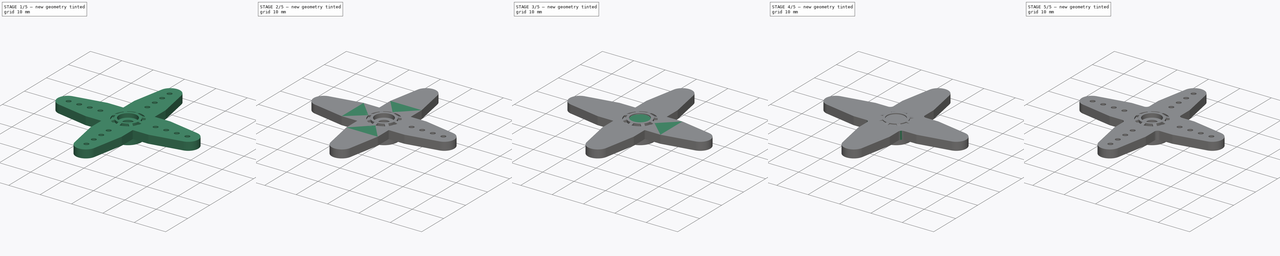
[diagram: build sequence overview — one tinted view per stage of 5, left to right]
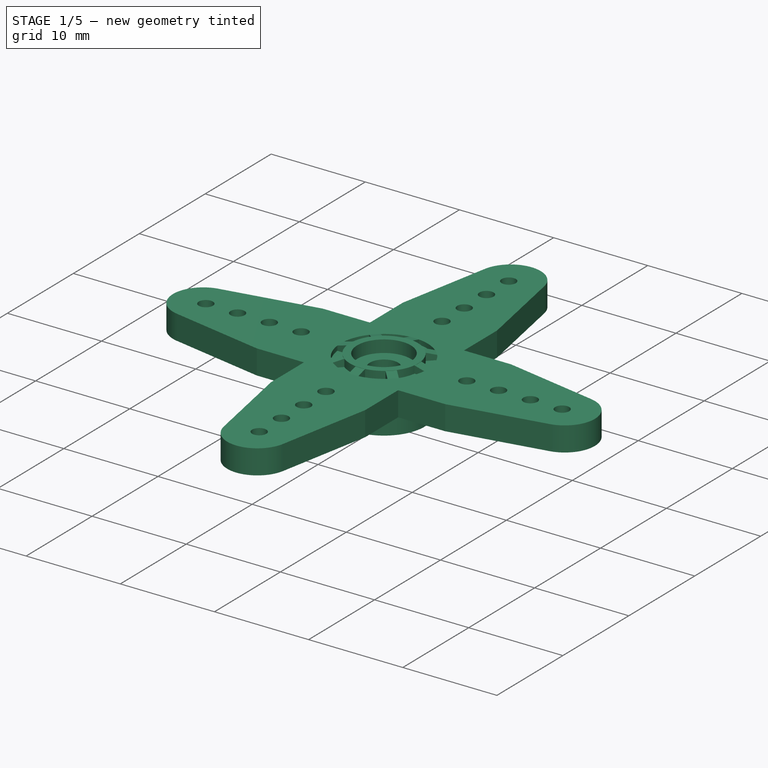
[diagram: stage 1 of 5 — iso view after this stage's code; geometry added in this stage tinted green]
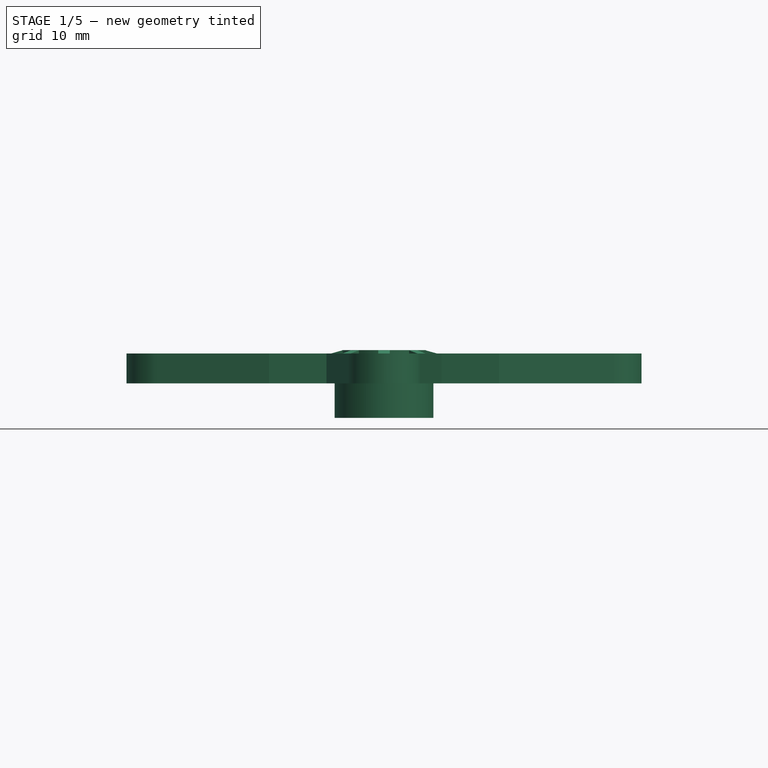
[diagram: stage 1 of 5 — front view after this stage's code; geometry added in this stage tinted green]
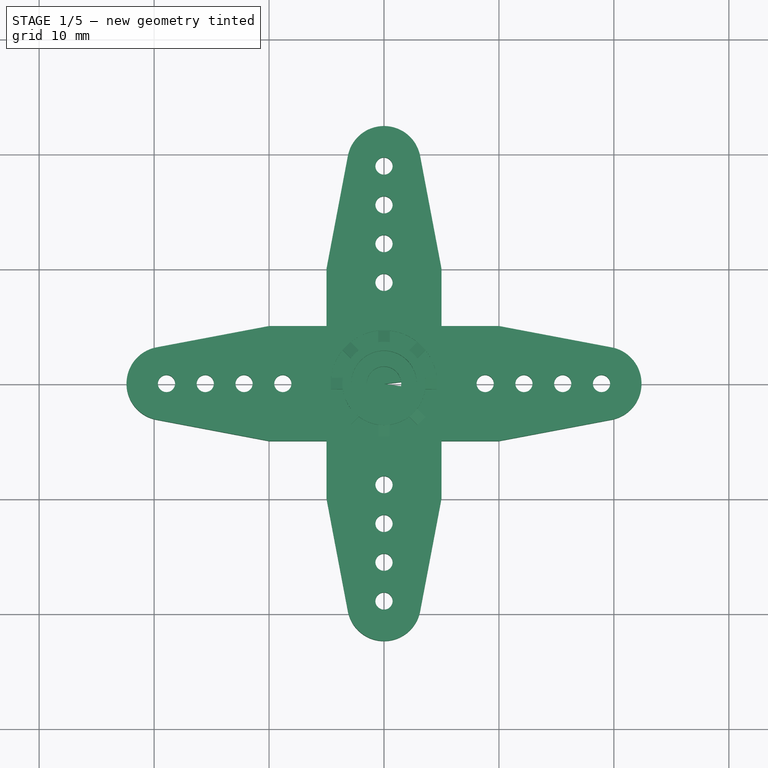
[diagram: stage 1 of 5 — top view after this stage's code; geometry added in this stage tinted green]
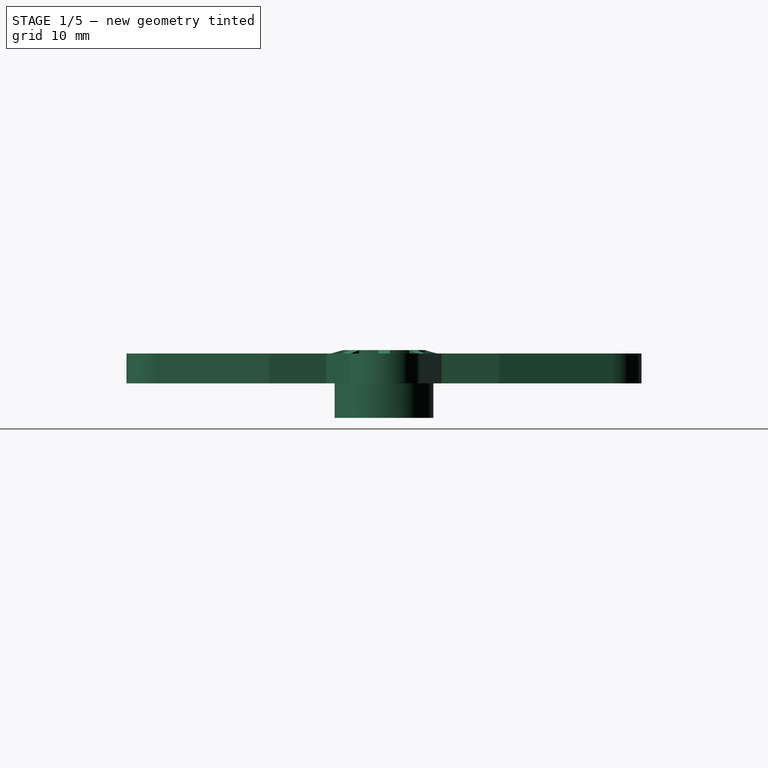
[diagram: stage 1 of 5 — right view after this stage's code; geometry added in this stage tinted green]
FCSTD DOCUMENT  (FreeCAD 0.21R33771 (Git))
Label: mg996_arms
License: All rights reserved
LicenseURL: http://en.wikipedia.org/wiki/All_rights_reserved
objects: Sketcher::SketchObject×40, PartDesign::Pocket×23, PartDesign::Pad×16, PartDesign::PolarPattern×12, PartDesign::Body×6, PartDesign::Fillet×3, Image::ImagePlane×1, App::MeasureDistance×1
note: 142 computed .brp shape members not serialized (recipe doc carries the construction recipe); baked Part::Feature solids carry a one-line shape summary decoded from their .brp

FEATURE [Sketcher::SketchObject] Sketch029
  FullyConstrained = true
  MapMode = 5
  Support = -> [XY_Plane003]
  sketch-geometry (20):
    g0: ArcOfCircle CenterX=0 CenterY=19.2 CenterZ=0 NormalX=0 NormalY=0 NormalZ=1 AngleXU=0 Radius=3.2 StartAngle=0.187245 EndAngle=2.95435
    g1: LineSegment StartX=-3.14407 StartY=19.7957 StartZ=0 EndX=-5 EndY=10 EndZ=0
    g2: LineSegment StartX=-5 StartY=10 StartZ=0 EndX=-5 EndY=5 EndZ=0
    g3: LineSegment StartX=3.14407 StartY=19.7957 StartZ=0 EndX=5 EndY=10 EndZ=0
    g4: LineSegment StartX=5 StartY=10 StartZ=0 EndX=5 EndY=5 EndZ=0
    g5: ArcOfCircle CenterX=0 CenterY=-19.2 CenterZ=0 NormalX=0 NormalY=0 NormalZ=1 AngleXU=0 Radius=3.2 StartAngle=3.32884 EndAngle=6.09594
    g6: LineSegment StartX=-3.14407 StartY=-19.7957 StartZ=0 EndX=-5 EndY=-10 EndZ=0
    g7: LineSegment StartX=-5 StartY=-10 StartZ=0 EndX=-5 EndY=-5 EndZ=0
    g8: LineSegment StartX=3.14407 StartY=-19.7957 StartZ=0 EndX=5 EndY=-10 EndZ=0
    g9: LineSegment StartX=5 StartY=-10 StartZ=0 EndX=5 EndY=-5 EndZ=0
    g10: LineSegment StartX=5 StartY=5 StartZ=0 EndX=10 EndY=5 EndZ=0
    g11: LineSegment StartX=10 StartY=5 StartZ=0 EndX=19.7957 EndY=3.14407 EndZ=0
    g12: ArcOfCircle CenterX=19.2 CenterY=0 CenterZ=0 NormalX=0 NormalY=0 NormalZ=1 AngleXU=0 Radius=3.2 StartAngle=4.89963 EndAngle=7.66674
    g13: LineSegment StartX=5 StartY=-5 StartZ=0 EndX=10 EndY=-5 EndZ=0
    g14: LineSegment StartX=10 StartY=-5 StartZ=0 EndX=19.7957 EndY=-3.14407 EndZ=0
    g15: LineSegment StartX=-5 StartY=5 StartZ=0 EndX=-10 EndY=5 EndZ=0
    g16: LineSegment StartX=-10 StartY=5 StartZ=0 EndX=-19.7957 EndY=3.14407 EndZ=0
    g17: ArcOfCircle CenterX=-19.2 CenterY=0 CenterZ=0 NormalX=0 NormalY=0 NormalZ=1 AngleXU=0 Radius=3.2 StartAngle=1.75804 EndAngle=4.52514
    g18: LineSegment StartX=-10 StartY=-5 StartZ=0 EndX=-19.7957 EndY=-3.14407 EndZ=0
    g19: LineSegment StartX=-5 StartY=-5 StartZ=0 EndX=-10 EndY=-5 EndZ=0
  constraints (53):
    c: PointOnObject(g0,g-2)
    c: Coincident(g2,g1)
    c: Vertical(g2)
    c: Coincident(g4,g3)
    c: Vertical(g4)
    c: Coincident(g7,g6)
    c: Vertical(g7)
    c: Coincident(g9,g8)
    c: Vertical(g9)
    c: Coincident(g10,g4)
    c: Horizontal(g10)
    c: Coincident(g11,g10)
    c: Coincident(g12,g11)
    c: Horizontal(g13)
    c: Coincident(g14,g13)
    c: Horizontal(g15)
    c: Coincident(g16,g15)
    c: Horizontal(g19)
    c: Coincident(g18,g19)
    c: Equal(g0,g17)
    c: Equal(g17,g5)
    c: Equal(g5,g12)
    c: Radius(g17) = 3.2
    c: Tangent(g17,g18) = 1.5708
    c: Tangent(g16,g17) = -1.5708
    c: Symmetric(g16,g17,g-1)
    c: DistanceX(g2,g-1) = 5
    c: DistanceY(g-1,g2) = 5
    c: Coincident(g2,g15)
    c: Coincident(g7,g19)
    c: Coincident(g9,g13)
    c: Symmetric(g2,g9,g-1)
    c: Horizontal(g2,g4)
    c: Horizontal(g7,g9)
    c: DistanceX(g15,g15) = 5
    c: Equal(g15,g19)
    c: Equal(g19,g13)
    c: Equal(g13,g10)
    c: Equal(g10,g4)
    c: Equal(g4,g2)
    c: Equal(g2,g7)
    c: Equal(g7,g9)
    c: Vertical(g4,g9)
    c: Symmetric(g17,g12,g-1)
    c: Symmetric(g0,g5,g-1)
    c: DistanceX(g17,g-1) = 19.2
    c: DistanceY(g-1,g0) = 19.2
    c: Tangent(g0,g1) = -1.5708
    c: Tangent(g3,g0) = 1.5708
    c: Tangent(g5,g6) = 1.5708
    c: Tangent(g5,g8) = -1.5708
    c: Tangent(g12,g14) = -1.5708
    c: Tangent(g11,g12,g11) = 1.5708
FEATURE [PartDesign::Pad] Pad012
  Direction = (0,0,1)
  Length = 2.6
  Length2 = 10
  Profile = -> Sketch029
  ReferenceAxis = -> Sketch029 [N_Axis]
  Type = 0
FEATURE [Sketcher::SketchObject] Sketch030
  FullyConstrained = true
  MapMode = 5
  Support = -> [XY_Plane003]
  sketch-geometry (2):
    g0: Circle CenterX=0 CenterY=0 CenterZ=0 NormalX=0 NormalY=0 NormalZ=1 AngleXU=0 Radius=3.625
    g1: Circle CenterX=0 CenterY=0 CenterZ=0 NormalX=0 NormalY=0 NormalZ=1 AngleXU=0 Radius=2.85
  constraints (4):
    c: Coincident(g0,g-1)
    c: Coincident(g1,g0)
    c: Diameter(g0) = 7.25
    c: Diameter(g1) = 5.7
FEATURE [PartDesign::Pad] Pad013
  BaseFeature = -> Pad012
  Direction = (0,0,1)
  Length = 2.9
  Length2 = 10
  Profile = -> Sketch030
  ReferenceAxis = -> Sketch030 [N_Axis]
  Type = 0
FEATURE [Sketcher::SketchObject] Sketch031
  ExternalGeometry = -> [Pad013]
  FullyConstrained = false
  MapMode = 5
  Placement = pos=(0,0,2.6) rot=(0,0,1;0rad)
  Support = -> [Pad013]
  sketch-geometry (2):
    g0: Circle CenterX=0 CenterY=0 CenterZ=0 NormalX=0 NormalY=0 NormalZ=1 AngleXU=0 Radius=3.625
    g1: Circle CenterX=0 CenterY=0 CenterZ=0 NormalX=0 NormalY=0 NormalZ=1 AngleXU=0 Radius=4.625
  constraints (3):
    c: Coincident(g0,g-3)
    c: Coincident(g1,g0)
    c: Diameter(g1) = 9.25
FEATURE [PartDesign::Pocket] Pocket017
  BaseFeature = -> Pad013
  Direction = (0,0,-1)
  Length = 0.5
  Length2 = 5
  Profile = -> Sketch031
  ReferenceAxis = -> Sketch031 [N_Axis]
  Type = 0
FEATURE [Sketcher::SketchObject] Sketch032
  ExternalGeometry = -> [Pocket017]
  FullyConstrained = false
  MapMode = 5
  Placement = pos=(0,0,0) rot=(1,0,0;1.5708rad)
  Support = -> [XZ_Plane003]
  sketch-geometry (4):
    g0: LineSegment StartX=3.53766 StartY=2.9 StartZ=0 EndX=4.625 EndY=2.6 EndZ=0
    g1: LineSegment StartX=4.625 StartY=2.6 StartZ=0 EndX=4.625 EndY=2.1 EndZ=0
    g2: LineSegment StartX=4.625 StartY=2.1 StartZ=0 EndX=3.53766 EndY=2.1 EndZ=0
    g3: LineSegment StartX=3.53766 StartY=2.1 StartZ=0 EndX=3.53766 EndY=2.9 EndZ=0
  constraints (9):
    c: PointOnObject(g0,g-3)
    c: Coincident(g0,g-5)
    c: Coincident(g0,g1)
    c: Coincident(g1,g-5)
    c: Coincident(g1,g2)
    c: PointOnObject(g2,g-4)
    c: Coincident(g2,g3)
    c: Coincident(g3,g0)
    c: Vertical(g3)
FEATURE [PartDesign::Pad] Pad014
  BaseFeature = -> Pocket017
  Direction = (0,-1,2e-16)
  Length = 1
  Length2 = 10
  Midplane = true
  Profile = -> Sketch032
  ReferenceAxis = -> Sketch032 [N_Axis]
  Type = 0
FEATURE [PartDesign::PolarPattern] PolarPattern009
  Angle = 360
  Axis = -> Z_Axis003
  BaseFeature = -> Pad014
  Occurrences = 8
  Originals = -> [Pad014]
FEATURE [Sketcher::SketchObject] Sketch033
  ExternalGeometry = -> [PolarPattern009]
  FullyConstrained = true
  MapMode = 5
  Placement = pos=(0,0,2.9) rot=(0,0,1;0rad)
  Support = -> [PolarPattern009]
  sketch-geometry (1):
    g0: Circle CenterX=0 CenterY=0 CenterZ=0 NormalX=0 NormalY=0 NormalZ=1 AngleXU=0 Radius=2.85
  constraints (2):
    c: Coincident(g0,g-3)
    c: Tangent(g0,g-3)
FEATURE [PartDesign::Pocket] Pocket018
  BaseFeature = -> PolarPattern009
  Direction = (0,0,-1)
  Length = 1.3
  Length2 = 5
  Profile = -> Sketch033
  ReferenceAxis = -> Sketch033 [N_Axis]
  Refine = true
  Type = 0
FEATURE [Sketcher::SketchObject] Sketch034
  FullyConstrained = true
  MapMode = 5
  Placement = pos=(0,0,1.6) rot=(0,0,1;0rad)
  Support = -> [Pocket018]
  sketch-geometry (1):
    g0: Circle CenterX=0 CenterY=0 CenterZ=0 NormalX=0 NormalY=0 NormalZ=1 AngleXU=0 Radius=1.5
  constraints (2):
    c: Coincident(g0,g-1)
    c: Diameter(g0) = 3
FEATURE [PartDesign::Pocket] Pocket019
  BaseFeature = -> Pocket018
  Direction = (0,0,-1)
  Length = 5
  Length2 = 5
  Profile = -> Sketch034
  ReferenceAxis = -> Sketch034 [N_Axis]
  Type = 0
FEATURE [Sketcher::SketchObject] Sketch035
  FullyConstrained = true
  MapMode = 5
  Support = -> [XY_Plane003]
  sketch-geometry (7):
    g0: Circle CenterX=8.8 CenterY=0 CenterZ=0 NormalX=0 NormalY=0 NormalZ=1 AngleXU=0 Radius=0.75
    g1: Circle CenterX=12.1741 CenterY=0 CenterZ=0 NormalX=0 NormalY=0 NormalZ=1 AngleXU=0 Radius=0.75
    g2: LineSegment StartX=8.8 StartY=0 StartZ=0 EndX=12.1741 EndY=0 EndZ=0
    g3: Circle CenterX=15.5482 CenterY=0 CenterZ=0 NormalX=0 NormalY=0 NormalZ=1 AngleXU=0 Radius=0.75
    g4: LineSegment StartX=12.1741 StartY=0 StartZ=0 EndX=15.5482 EndY=0 EndZ=0
    g5: Circle CenterX=18.9223 CenterY=0 CenterZ=0 NormalX=0 NormalY=0 NormalZ=1 AngleXU=0 Radius=0.75
    g6: LineSegment StartX=15.5482 StartY=0 StartZ=0 EndX=18.9223 EndY=0 EndZ=0
  constraints (18):
    c: PointOnObject(g0,g-1)
    c: Coincident(g0,g2)
    c: Coincident(g1,g2)
    c: Distance(g2) = 3.37411
    c: Angle(g2) = 0
    c: Coincident(g1,g4)
    c: Coincident(g3,g4)
    c: Equal(g2,g4)
    c: Parallel(g4,g2)
    c: Coincident(g3,g6)
    c: Coincident(g5,g6)
    c: Equal(g2,g6)
    c: Parallel(g6,g2)
    c: DistanceX(g-1,g0) = 8.8
    c: Diameter(g0) = 1.5
    c: Equal(g0,g1)
    c: Equal(g1,g3)
    c: Equal(g3,g5)
FEATURE [PartDesign::Pocket] Pocket020
  BaseFeature = -> Pocket019
  Direction = (0,0,-1)
  Length = 5
  Length2 = 5
  Profile = -> Sketch035
  ReferenceAxis = -> Sketch035 [N_Axis]
  Reversed = true
  Type = 0
FEATURE [PartDesign::PolarPattern] PolarPattern010
  Angle = 360
  Axis = -> Z_Axis002
  BaseFeature = -> Pocket020
  Occurrences = 4
  Originals = -> [Pocket020]
FEATURE [Sketcher::SketchObject] Sketch036
  FullyConstrained = true
  MapMode = 5
  Support = -> [XY_Plane003]
  sketch-geometry (1):
    g0: Circle CenterX=0 CenterY=0 CenterZ=0 NormalX=0 NormalY=0 NormalZ=1 AngleXU=0 Radius=4.3
  constraints (2):
    c: Coincident(g0,g-1)
    c: Diameter(g0) = 8.6
FEATURE [PartDesign::Pad] Pad015
  BaseFeature = -> PolarPattern010
  Direction = (0,0,1)
  Length = 3
  Length2 = 10
  Profile = -> Sketch036
  ReferenceAxis = -> Sketch036 [N_Axis]
  Reversed = true
  Type = 0
FEATURE [Sketcher::SketchObject] Sketch037
  FullyConstrained = false
  MapMode = 5
  Support = -> [XY_Plane003]
  sketch-geometry (9):
    g0: Circle CenterX=0 CenterY=0 CenterZ=0 NormalX=0 NormalY=0 NormalZ=1 AngleXU=0 Radius=3
    g1: LineSegment StartX=0 StartY=0 StartZ=0 EndX=2.97634 EndY=0.376 EndZ=0
    g2: LineSegment StartX=0 StartY=0 StartZ=0 EndX=2.97634 EndY=-0.376 EndZ=0
    g3: ArcOfCircle CenterX=0 CenterY=0 CenterZ=0 NormalX=0 NormalY=0 NormalZ=1 AngleXU=0 Radius=3 StartAngle=0.0573375 EndAngle=0.125664
    g4: ArcOfCircle CenterX=0 CenterY=0 CenterZ=0 NormalX=0 NormalY=0 NormalZ=1 AngleXU=0 Radius=3 StartAngle=6.15752 EndAngle=6.22585
    g5: LineSegment StartX=2.99507 StartY=0.171918 StartZ=0 EndX=2.70396 EndY=0 EndZ=0
    g6: LineSegment StartX=2.70396 StartY=0 StartZ=0 EndX=2.99507 EndY=-0.171918 EndZ=0
    g7: LineSegment StartX=0 StartY=0 StartZ=0 EndX=2.97634 EndY=0.376 EndZ=0
    g8: LineSegment StartX=0 StartY=0 StartZ=0 EndX=2.97634 EndY=-0.376 EndZ=0
  constraints (20):
    c: Coincident(g0,g-1)
    c: Diameter(g0) = 6
    c: Coincident(g1,g0)
    c: PointOnObject(g1,g0)
    c: Coincident(g2,g0)
    c: Angle(g-1,g1) = 0.125664
    c: Angle(g2,g-1) = 0.125664
    c: Coincident(g3,g0)
    c: Coincident(g3,g1)
    c: Coincident(g4,g3)
    c: Coincident(g4,g2)
    c: Symmetric(g3,g4,g-1)
    c: Coincident(g5,g3)
    c: PointOnObject(g5,g-1)
    c: Coincident(g6,g5)
    c: Coincident(g6,g4)
    c: Coincident(g7,g3)
    c: Coincident(g7,g3)
    c: Coincident(g8,g3)
    c: Coincident(g8,g4)
FEATURE [PartDesign::Pocket] Pocket021
  BaseFeature = -> Pad015
  Direction = (0,0,-1)
  Length = 5
  Length2 = 0.5
  Profile = -> Sketch037
  ReferenceAxis = -> Sketch037 [N_Axis]
  Type = 4
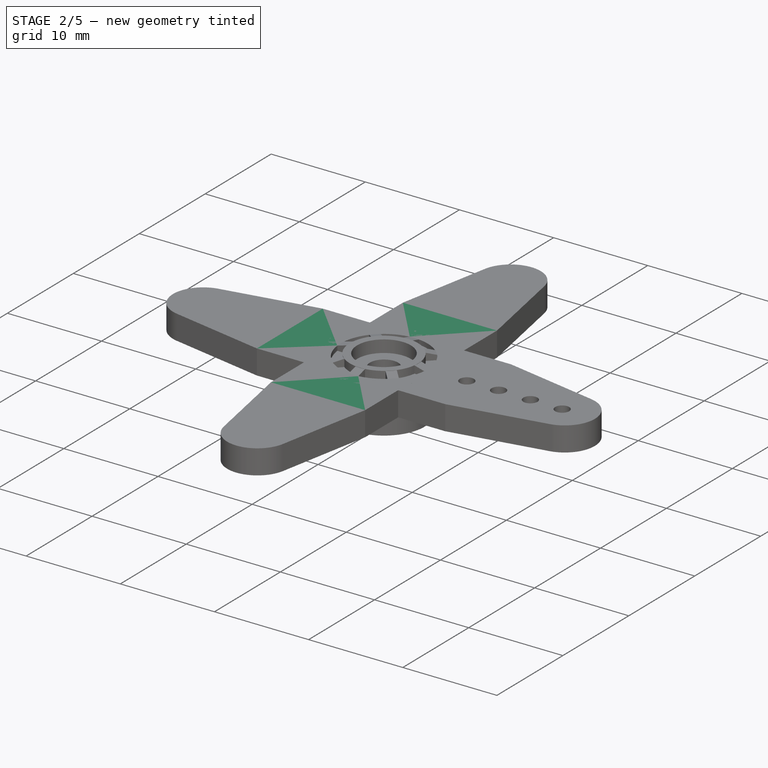
[diagram: stage 2 of 5 — iso view after this stage's code; geometry added in this stage tinted green]
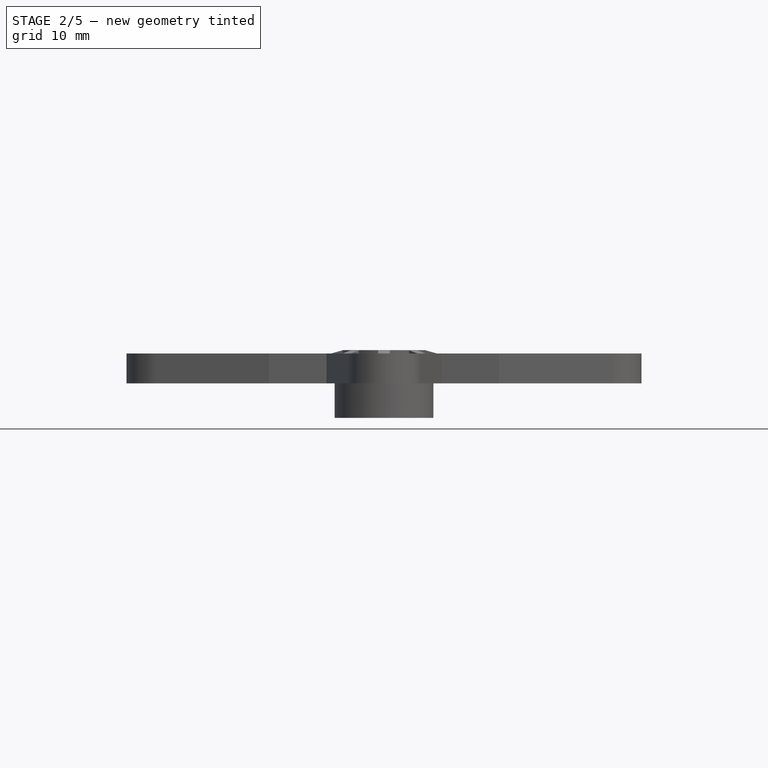
[diagram: stage 2 of 5 — front view after this stage's code; geometry added in this stage tinted green]
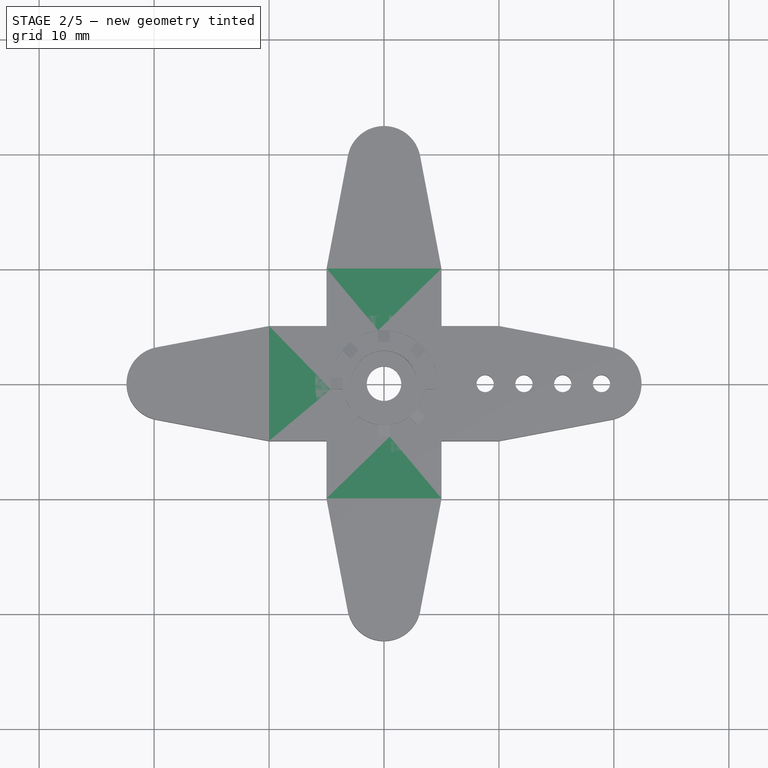
[diagram: stage 2 of 5 — top view after this stage's code; geometry added in this stage tinted green]
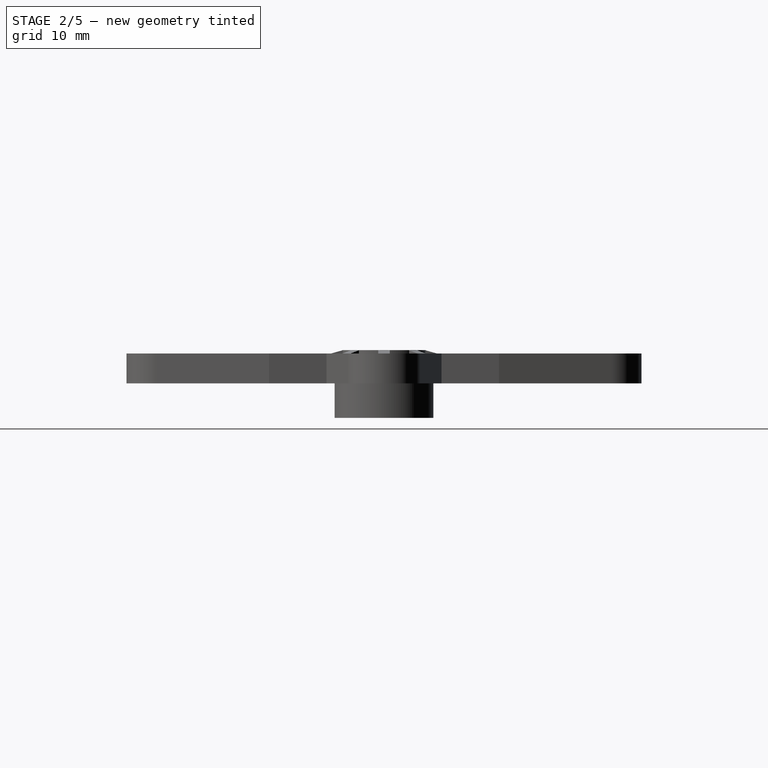
[diagram: stage 2 of 5 — right view after this stage's code; geometry added in this stage tinted green]
FEATURE [PartDesign::Body] Body001  label="Corps001"
  Group = -> [Sketch009,Pad004,Sketch010,Pad005,Sketch011,Pocket005,Sketch012,Pad006,PolarPattern003,Sketch013,Pocket006,Sketch014,Pocket007,Sketch015,Pocket008,PolarPattern004,Sketch016,Pad007,Sketch017,Pocket009,PolarPattern005,Fillet]
  Origin = -> Origin001
  Placement = pos=(50,0,0) rot=(0,0,1;0rad)
  Tip = -> Fillet
FEATURE [Sketcher::SketchObject] Sketch019
  FullyConstrained = true
  MapMode = 5
  Support = -> [XY_Plane002]
  sketch-geometry (20):
    g0: ArcOfCircle CenterX=0 CenterY=19.2 CenterZ=0 NormalX=0 NormalY=0 NormalZ=1 AngleXU=0 Radius=3.2 StartAngle=0.187245 EndAngle=2.95435
    g1: LineSegment StartX=-3.14407 StartY=19.7957 StartZ=0 EndX=-5 EndY=10 EndZ=0
    g2: LineSegment StartX=-5 StartY=10 StartZ=0 EndX=-5 EndY=5 EndZ=0
    g3: LineSegment StartX=3.14407 StartY=19.7957 StartZ=0 EndX=5 EndY=10 EndZ=0
    g4: LineSegment StartX=5 StartY=10 StartZ=0 EndX=5 EndY=5 EndZ=0
    g5: ArcOfCircle CenterX=0 CenterY=-19.2 CenterZ=0 NormalX=0 NormalY=0 NormalZ=1 AngleXU=0 Radius=3.2 StartAngle=3.32884 EndAngle=6.09594
    g6: LineSegment StartX=-3.14407 StartY=-19.7957 StartZ=0 EndX=-5 EndY=-10 EndZ=0
    g7: LineSegment StartX=-5 StartY=-10 StartZ=0 EndX=-5 EndY=-5 EndZ=0
    g8: LineSegment StartX=3.14407 StartY=-19.7957 StartZ=0 EndX=5 EndY=-10 EndZ=0
    g9: LineSegment StartX=5 StartY=-10 StartZ=0 EndX=5 EndY=-5 EndZ=0
    g10: LineSegment StartX=5 StartY=5 StartZ=0 EndX=10 EndY=5 EndZ=0
    g11: LineSegment StartX=10 StartY=5 StartZ=0 EndX=19.7957 EndY=3.14407 EndZ=0
    g12: ArcOfCircle CenterX=19.2 CenterY=0 CenterZ=0 NormalX=0 NormalY=0 NormalZ=1 AngleXU=0 Radius=3.2 StartAngle=4.89963 EndAngle=7.66674
    g13: LineSegment StartX=5 StartY=-5 StartZ=0 EndX=10 EndY=-5 EndZ=0
    g14: LineSegment StartX=10 StartY=-5 StartZ=0 EndX=19.7957 EndY=-3.14407 EndZ=0
    g15: LineSegment StartX=-5 StartY=5 StartZ=0 EndX=-10 EndY=5 EndZ=0
    g16: LineSegment StartX=-10 StartY=5 StartZ=0 EndX=-19.7957 EndY=3.14407 EndZ=0
    g17: ArcOfCircle CenterX=-19.2 CenterY=0 CenterZ=0 NormalX=0 NormalY=0 NormalZ=1 AngleXU=0 Radius=3.2 StartAngle=1.75804 EndAngle=4.52514
    g18: LineSegment StartX=-10 StartY=-5 StartZ=0 EndX=-19.7957 EndY=-3.14407 EndZ=0
    g19: LineSegment StartX=-5 StartY=-5 StartZ=0 EndX=-10 EndY=-5 EndZ=0
  constraints (53):
    c: PointOnObject(g0,g-2)
    c: Coincident(g2,g1)
    c: Vertical(g2)
    c: Coincident(g4,g3)
    c: Vertical(g4)
    c: Coincident(g7,g6)
    c: Vertical(g7)
    c: Coincident(g9,g8)
    c: Vertical(g9)
    c: Coincident(g10,g4)
    c: Horizontal(g10)
    c: Coincident(g11,g10)
    c: Coincident(g12,g11)
    c: Horizontal(g13)
    c: Coincident(g14,g13)
    c: Horizontal(g15)
    c: Coincident(g16,g15)
    c: Horizontal(g19)
    c: Coincident(g18,g19)
    c: Equal(g0,g17)
    c: Equal(g17,g5)
    c: Equal(g5,g12)
    c: Radius(g17) = 3.2
    c: Tangent(g17,g18) = 1.5708
    c: Tangent(g16,g17) = -1.5708
    c: Symmetric(g16,g17,g-1)
    c: DistanceX(g2,g-1) = 5
    c: DistanceY(g-1,g2) = 5
    c: Coincident(g2,g15)
    c: Coincident(g7,g19)
    c: Coincident(g9,g13)
    c: Symmetric(g2,g9,g-1)
    c: Horizontal(g2,g4)
    c: Horizontal(g7,g9)
    c: DistanceX(g15,g15) = 5
    c: Equal(g15,g19)
    c: Equal(g19,g13)
    c: Equal(g13,g10)
    c: Equal(g10,g4)
    c: Equal(g4,g2)
    c: Equal(g2,g7)
    c: Equal(g7,g9)
    c: Vertical(g4,g9)
    c: Symmetric(g17,g12,g-1)
    c: Symmetric(g0,g5,g-1)
    c: DistanceX(g17,g-1) = 19.2
    c: DistanceY(g-1,g0) = 19.2
    c: Tangent(g0,g1) = -1.5708
    c: Tangent(g3,g0) = 1.5708
    c: Tangent(g5,g6) = 1.5708
    c: Tangent(g5,g8) = -1.5708
    c: Tangent(g12,g14) = -1.5708
    c: Tangent(g11,g12,g11) = 1.5708
FEATURE [PartDesign::Pad] Pad008
  Direction = (0,0,1)
  Length = 2.6
  Length2 = 10
  Profile = -> Sketch019
  ReferenceAxis = -> Sketch019 [N_Axis]
  Type = 0
FEATURE [Sketcher::SketchObject] Sketch020
  FullyConstrained = true
  MapMode = 5
  Support = -> [XY_Plane002]
  sketch-geometry (2):
    g0: Circle CenterX=0 CenterY=0 CenterZ=0 NormalX=0 NormalY=0 NormalZ=1 AngleXU=0 Radius=3.625
    g1: Circle CenterX=0 CenterY=0 CenterZ=0 NormalX=0 NormalY=0 NormalZ=1 AngleXU=0 Radius=2.85
  constraints (4):
    c: Coincident(g0,g-1)
    c: Coincident(g1,g0)
    c: Diameter(g0) = 7.25
    c: Diameter(g1) = 5.7
FEATURE [PartDesign::Pad] Pad009
  BaseFeature = -> Pad008
  Direction = (0,0,1)
  Length = 2.9
  Length2 = 10
  Profile = -> Sketch020
  ReferenceAxis = -> Sketch020 [N_Axis]
  Type = 0
FEATURE [Sketcher::SketchObject] Sketch021
  ExternalGeometry = -> [Pad009]
  FullyConstrained = false
  MapMode = 5
  Placement = pos=(0,0,2.6) rot=(0,0,1;0rad)
  Support = -> [Pad009]
  sketch-geometry (2):
    g0: Circle CenterX=0 CenterY=0 CenterZ=0 NormalX=0 NormalY=0 NormalZ=1 AngleXU=0 Radius=3.625
    g1: Circle CenterX=0 CenterY=0 CenterZ=0 NormalX=0 NormalY=0 NormalZ=1 AngleXU=0 Radius=4.625
  constraints (3):
    c: Coincident(g0,g-3)
    c: Coincident(g1,g0)
    c: Diameter(g1) = 9.25
FEATURE [PartDesign::Pocket] Pocket011
  BaseFeature = -> Pad009
  Direction = (0,0,-1)
  Length = 0.5
  Length2 = 5
  Profile = -> Sketch021
  ReferenceAxis = -> Sketch021 [N_Axis]
  Type = 0
FEATURE [Sketcher::SketchObject] Sketch022
  ExternalGeometry = -> [Pocket011]
  FullyConstrained = false
  MapMode = 5
  Placement = pos=(0,0,0) rot=(1,0,0;1.5708rad)
  Support = -> [XZ_Plane002]
  sketch-geometry (4):
    g0: LineSegment StartX=3.53766 StartY=2.9 StartZ=0 EndX=4.625 EndY=2.6 EndZ=0
    g1: LineSegment StartX=4.625 StartY=2.6 StartZ=0 EndX=4.625 EndY=2.1 EndZ=0
    g2: LineSegment StartX=4.625 StartY=2.1 StartZ=0 EndX=3.53766 EndY=2.1 EndZ=0
    g3: LineSegment StartX=3.53766 StartY=2.1 StartZ=0 EndX=3.53766 EndY=2.9 EndZ=0
  constraints (9):
    c: PointOnObject(g0,g-3)
    c: Coincident(g0,g-5)
    c: Coincident(g0,g1)
    c: Coincident(g1,g-5)
    c: Coincident(g1,g2)
    c: PointOnObject(g2,g-4)
    c: Coincident(g2,g3)
    c: Coincident(g3,g0)
    c: Vertical(g3)
FEATURE [PartDesign::Pad] Pad010
  BaseFeature = -> Pocket011
  Direction = (0,-1,2e-16)
  Length = 1
  Length2 = 10
  Midplane = true
  Profile = -> Sketch022
  ReferenceAxis = -> Sketch022 [N_Axis]
  Type = 0
FEATURE [PartDesign::PolarPattern] PolarPattern006
  Angle = 360
  Axis = -> Z_Axis002
  BaseFeature = -> Pad010
  Occurrences = 8
  Originals = -> [Pad010]
FEATURE [Sketcher::SketchObject] Sketch023
  ExternalGeometry = -> [PolarPattern006]
  FullyConstrained = true
  MapMode = 5
  Placement = pos=(0,0,2.9) rot=(0,0,1;0rad)
  Support = -> [PolarPattern006]
  sketch-geometry (1):
    g0: Circle CenterX=0 CenterY=0 CenterZ=0 NormalX=0 NormalY=0 NormalZ=1 AngleXU=0 Radius=2.85
  constraints (2):
    c: Coincident(g0,g-3)
    c: Tangent(g0,g-3)
FEATURE [PartDesign::Pocket] Pocket012
  BaseFeature = -> PolarPattern006
  Direction = (0,0,-1)
  Length = 1.3
  Length2 = 5
  Profile = -> Sketch023
  ReferenceAxis = -> Sketch023 [N_Axis]
  Refine = true
  Type = 0
FEATURE [Sketcher::SketchObject] Sketch024
  FullyConstrained = true
  MapMode = 5
  Placement = pos=(0,0,1.6) rot=(0,0,1;0rad)
  Support = -> [Pocket012]
  sketch-geometry (1):
    g0: Circle CenterX=0 CenterY=0 CenterZ=0 NormalX=0 NormalY=0 NormalZ=1 AngleXU=0 Radius=1.5
  constraints (2):
    c: Coincident(g0,g-1)
    c: Diameter(g0) = 3
FEATURE [PartDesign::Pocket] Pocket013
  BaseFeature = -> Pocket012
  Direction = (0,0,-1)
  Length = 5
  Length2 = 5
  Profile = -> Sketch024
  ReferenceAxis = -> Sketch024 [N_Axis]
  Type = 0
FEATURE [Sketcher::SketchObject] Sketch025
  FullyConstrained = true
  MapMode = 5
  Support = -> [XY_Plane002]
  sketch-geometry (7):
    g0: Circle CenterX=8.8 CenterY=0 CenterZ=0 NormalX=0 NormalY=0 NormalZ=1 AngleXU=0 Radius=0.75
    g1: Circle CenterX=12.1741 CenterY=0 CenterZ=0 NormalX=0 NormalY=0 NormalZ=1 AngleXU=0 Radius=0.75
    g2: LineSegment StartX=8.8 StartY=0 StartZ=0 EndX=12.1741 EndY=0 EndZ=0
    g3: Circle CenterX=15.5482 CenterY=0 CenterZ=0 NormalX=0 NormalY=0 NormalZ=1 AngleXU=0 Radius=0.75
    g4: LineSegment StartX=12.1741 StartY=0 StartZ=0 EndX=15.5482 EndY=0 EndZ=0
    g5: Circle CenterX=18.9223 CenterY=0 CenterZ=0 NormalX=0 NormalY=0 NormalZ=1 AngleXU=0 Radius=0.75
    g6: LineSegment StartX=15.5482 StartY=0 StartZ=0 EndX=18.9223 EndY=0 EndZ=0
  constraints (18):
    c: PointOnObject(g0,g-1)
    c: Coincident(g0,g2)
    c: Coincident(g1,g2)
    c: Distance(g2) = 3.37411
    c: Angle(g2) = 0
    c: Coincident(g1,g4)
    c: Coincident(g3,g4)
    c: Equal(g2,g4)
    c: Parallel(g4,g2)
    c: Coincident(g3,g6)
    c: Coincident(g5,g6)
    c: Equal(g2,g6)
    c: Parallel(g6,g2)
    c: DistanceX(g-1,g0) = 8.8
    c: Diameter(g0) = 1.5
    c: Equal(g0,g1)
    c: Equal(g1,g3)
    c: Equal(g3,g5)
FEATURE [PartDesign::Pocket] Pocket014
  BaseFeature = -> Pocket013
  Direction = (0,0,-1)
  Length = 5
  Length2 = 5
  Profile = -> Sketch025
  ReferenceAxis = -> Sketch025 [N_Axis]
  Reversed = true
  Type = 0
FEATURE [PartDesign::PolarPattern] PolarPattern011
  Angle = 360
  Axis = -> Sketch037 [N_Axis]
  BaseFeature = -> Pocket021
  Occurrences = 25
  Originals = -> [Pocket021]
  Refine = true
FEATURE [PartDesign::Fillet] Fillet002
  Base = -> PolarPattern011 [Edge125,Edge115,Edge1,Edge116]
  BaseFeature = -> PolarPattern011
  Radius = 1
  SupportTransform = false
  UseAllEdges = false
FEATURE [Sketcher::SketchObject] Sketch038
  FullyConstrained = true
  MapMode = 5
  Support = -> [XY_Plane003]
  sketch-geometry (2):
    g0: Circle CenterX=0 CenterY=0 CenterZ=0 NormalX=0 NormalY=0 NormalZ=1 AngleXU=0 Radius=6
    g1: Circle CenterX=0 CenterY=0 CenterZ=0 NormalX=0 NormalY=0 NormalZ=1 AngleXU=0 Radius=25
  constraints (4):
    c: Coincident(g0,g-1)
    c: Diameter(g0) = 12
    c: Coincident(g1,g0)
    c: Diameter(g1) = 50
FEATURE [PartDesign::Pocket] Pocket022
  BaseFeature = -> Fillet002
  Direction = (0,0,-1)
  Length = 10
  Length2 = 5
  Midplane = true
  Profile = -> Sketch038
  ReferenceAxis = -> Sketch038 [N_Axis]
  Type = 0
FEATURE [PartDesign::Body] Body003  label="Corps003"
  Group = -> [Sketch029,Pad012,Sketch030,Pad013,Sketch031,Pocket017,Sketch032,Pad014,PolarPattern009,Sketch033,Pocket018,Sketch034,Pocket019,Sketch035,Pocket020,PolarPattern010,Sketch036,Pad015,Sketch037,Pocket021,PolarPattern011,Fillet002,Sketch038,Pocket022]
  Origin = -> Origin003
  Tip = -> Pocket022
FEATURE [Sketcher::SketchObject] Sketch039
  FullyConstrained = false
  MapMode = 5
  Support = -> [XY_Plane002]
  sketch-geometry (3):
    g0: LineSegment StartX=0 StartY=0 StartZ=0 EndX=13.1322 EndY=8.09012 EndZ=0
    g1: ArcOfCircle CenterX=13.4863 CenterY=0 CenterZ=0 NormalX=0 NormalY=0 NormalZ=1 AngleXU=0 Radius=2.51374 StartAngle=5.23209 EndAngle=7.15766
    g2: GeomPoint X=16 Y=0 Z=0
  constraints (5):
    c: Coincident(g0,g-1)
    c: PointOnObject(g1,g-1)
    c: PointOnObject(g2,g-1)
    c: PointOnObject(g2,g1)
    c: DistanceX(g0,g2) = 16
FEATURE [PartDesign::Body] Body002  label="Corps002"
  Group = -> [Sketch019,Pad008,Sketch020,Pad009,Sketch021,Pocket011,Sketch022,Pad010,PolarPattern006,Sketch023,Pocket012,Sketch024,Pocket013,Sketch025,Pocket014,PolarPattern007,Sketch026,Pad011,Sketch027,Pocket015,PolarPattern008,Fillet001,Sketch028,Pocket016,Sketch039]
  Origin = -> Origin002
  Tip = -> Pocket016
FEATURE [App::MeasureDistance] Distance  label="Distance: 44,8000 mm"
  Distance = 44.8
  P1 = (50,22.4,2.6)
  P2 = (50,-22.4,2.6)
FEATURE [PartDesign::Body] Body004  label="Corps004"
  Origin = -> Origin004
FEATURE [PartDesign::Body] Body005  label="Corps005"
  Origin = -> Origin005
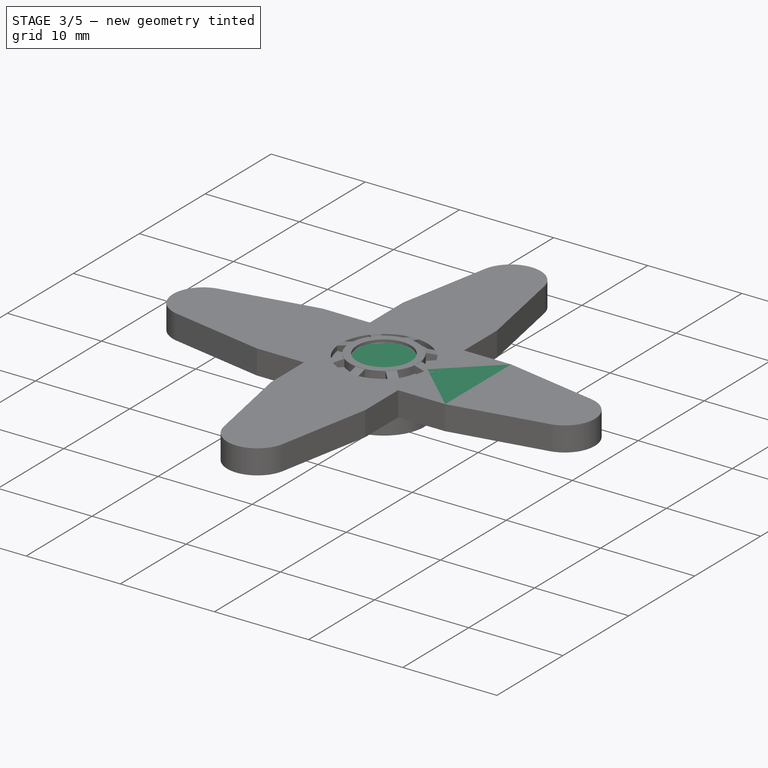
[diagram: stage 3 of 5 — iso view after this stage's code; geometry added in this stage tinted green]
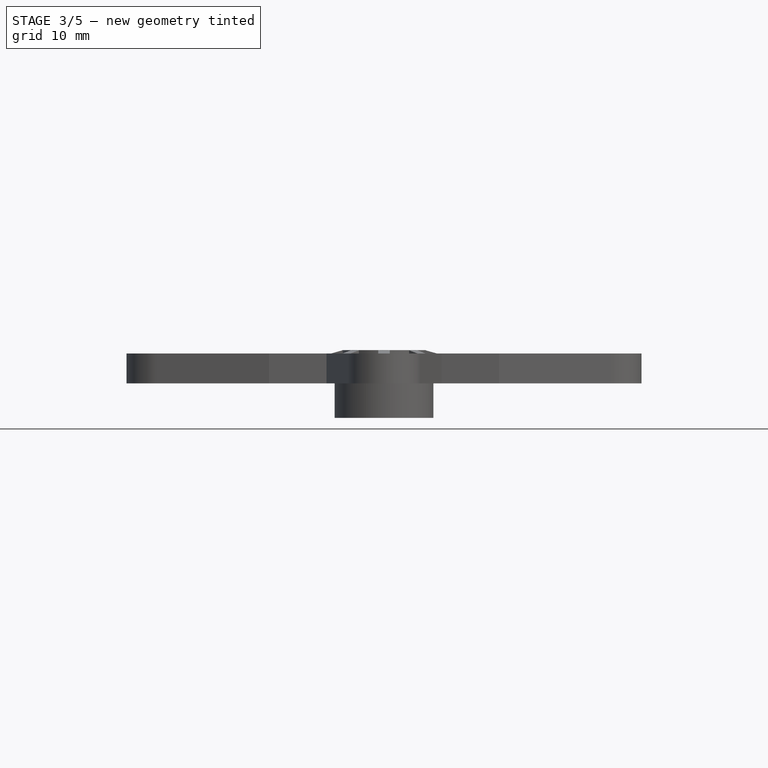
[diagram: stage 3 of 5 — front view after this stage's code; geometry added in this stage tinted green]
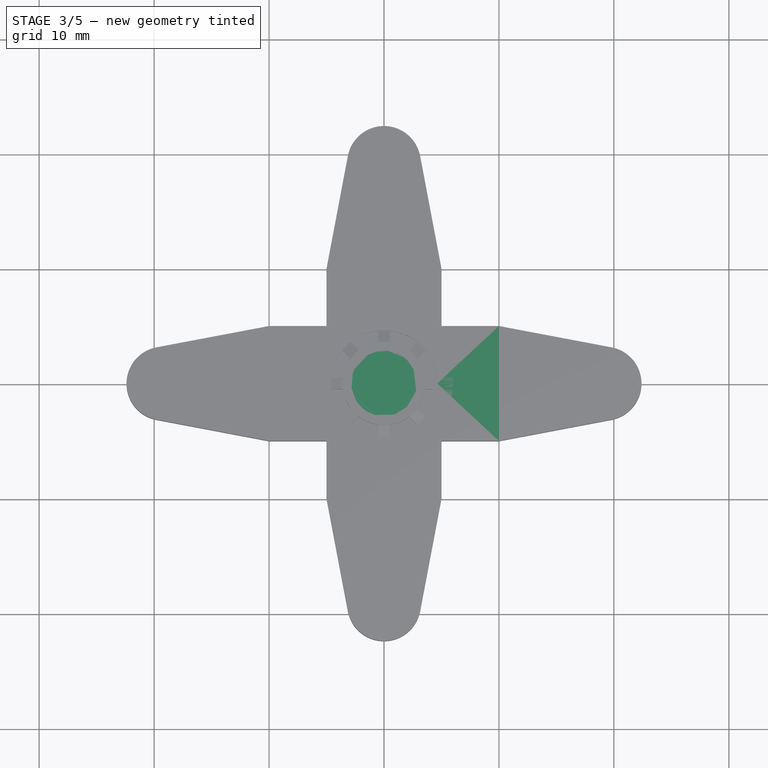
[diagram: stage 3 of 5 — top view after this stage's code; geometry added in this stage tinted green]
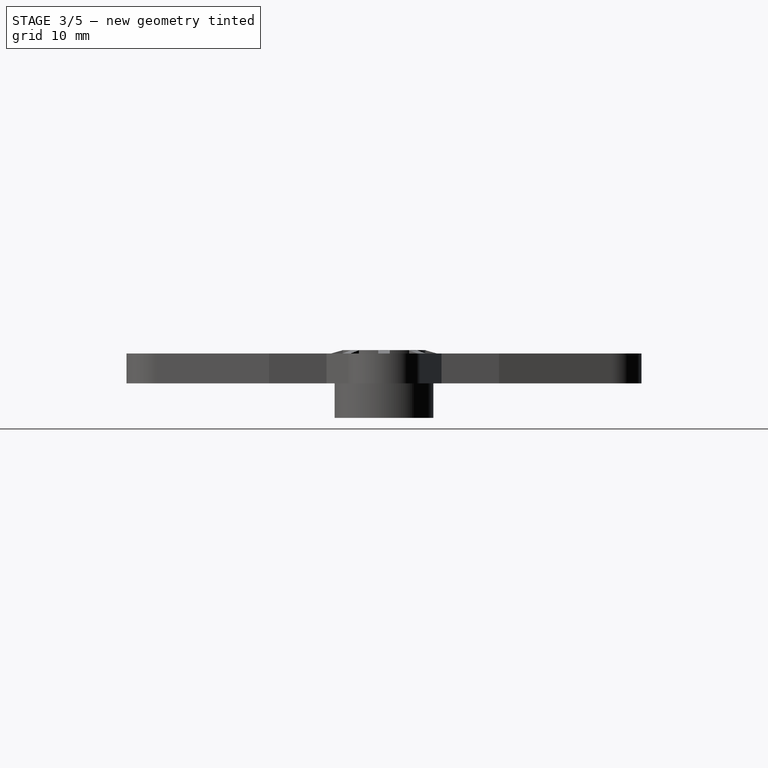
[diagram: stage 3 of 5 — right view after this stage's code; geometry added in this stage tinted green]
FEATURE [Sketcher::SketchObject] Sketch009
  FullyConstrained = true
  MapMode = 5
  Support = -> [XY_Plane001]
  sketch-geometry (20):
    g0: ArcOfCircle CenterX=0 CenterY=19.2 CenterZ=0 NormalX=0 NormalY=0 NormalZ=1 AngleXU=0 Radius=3.2 StartAngle=0.187245 EndAngle=2.95435
    g1: LineSegment StartX=-3.14407 StartY=19.7957 StartZ=0 EndX=-5 EndY=10 EndZ=0
    g2: LineSegment StartX=-5 StartY=10 StartZ=0 EndX=-5 EndY=5 EndZ=0
    g3: LineSegment StartX=3.14407 StartY=19.7957 StartZ=0 EndX=5 EndY=10 EndZ=0
    g4: LineSegment StartX=5 StartY=10 StartZ=0 EndX=5 EndY=5 EndZ=0
    g5: ArcOfCircle CenterX=0 CenterY=-19.2 CenterZ=0 NormalX=0 NormalY=0 NormalZ=1 AngleXU=0 Radius=3.2 StartAngle=3.32884 EndAngle=6.09594
    g6: LineSegment StartX=-3.14407 StartY=-19.7957 StartZ=0 EndX=-5 EndY=-10 EndZ=0
    g7: LineSegment StartX=-5 StartY=-10 StartZ=0 EndX=-5 EndY=-5 EndZ=0
    g8: LineSegment StartX=3.14407 StartY=-19.7957 StartZ=0 EndX=5 EndY=-10 EndZ=0
    g9: LineSegment StartX=5 StartY=-10 StartZ=0 EndX=5 EndY=-5 EndZ=0
    g10: LineSegment StartX=5 StartY=5 StartZ=0 EndX=10 EndY=5 EndZ=0
    g11: LineSegment StartX=10 StartY=5 StartZ=0 EndX=19.7957 EndY=3.14407 EndZ=0
    g12: ArcOfCircle CenterX=19.2 CenterY=0 CenterZ=0 NormalX=0 NormalY=0 NormalZ=1 AngleXU=0 Radius=3.2 StartAngle=4.89963 EndAngle=7.66674
    g13: LineSegment StartX=5 StartY=-5 StartZ=0 EndX=10 EndY=-5 EndZ=0
    g14: LineSegment StartX=10 StartY=-5 StartZ=0 EndX=19.7957 EndY=-3.14407 EndZ=0
    g15: LineSegment StartX=-5 StartY=5 StartZ=0 EndX=-10 EndY=5 EndZ=0
    g16: LineSegment StartX=-10 StartY=5 StartZ=0 EndX=-19.7957 EndY=3.14407 EndZ=0
    g17: ArcOfCircle CenterX=-19.2 CenterY=0 CenterZ=0 NormalX=0 NormalY=0 NormalZ=1 AngleXU=0 Radius=3.2 StartAngle=1.75804 EndAngle=4.52514
    g18: LineSegment StartX=-10 StartY=-5 StartZ=0 EndX=-19.7957 EndY=-3.14407 EndZ=0
    g19: LineSegment StartX=-5 StartY=-5 StartZ=0 EndX=-10 EndY=-5 EndZ=0
  constraints (53):
    c: PointOnObject(g0,g-2)
    c: Coincident(g2,g1)
    c: Vertical(g2)
    c: Coincident(g4,g3)
    c: Vertical(g4)
    c: Coincident(g7,g6)
    c: Vertical(g7)
    c: Coincident(g9,g8)
    c: Vertical(g9)
    c: Coincident(g10,g4)
    c: Horizontal(g10)
    c: Coincident(g11,g10)
    c: Coincident(g12,g11)
    c: Horizontal(g13)
    c: Coincident(g14,g13)
    c: Horizontal(g15)
    c: Coincident(g16,g15)
    c: Horizontal(g19)
    c: Coincident(g18,g19)
    c: Equal(g0,g17)
    c: Equal(g17,g5)
    c: Equal(g5,g12)
    c: Radius(g17) = 3.2
    c: Tangent(g17,g18) = 1.5708
    c: Tangent(g16,g17) = -1.5708
    c: Symmetric(g16,g17,g-1)
    c: DistanceX(g2,g-1) = 5
    c: DistanceY(g-1,g2) = 5
    c: Coincident(g2,g15)
    c: Coincident(g7,g19)
    c: Coincident(g9,g13)
    c: Symmetric(g2,g9,g-1)
    c: Horizontal(g2,g4)
    c: Horizontal(g7,g9)
    c: DistanceX(g15,g15) = 5
    c: Equal(g15,g19)
    c: Equal(g19,g13)
    c: Equal(g13,g10)
    c: Equal(g10,g4)
    c: Equal(g4,g2)
    c: Equal(g2,g7)
    c: Equal(g7,g9)
    c: Vertical(g4,g9)
    c: Symmetric(g17,g12,g-1)
    c: Symmetric(g0,g5,g-1)
    c: DistanceX(g17,g-1) = 19.2
    c: DistanceY(g-1,g0) = 19.2
    c: Tangent(g0,g1) = -1.5708
    c: Tangent(g3,g0) = 1.5708
    c: Tangent(g5,g6) = 1.5708
    c: Tangent(g5,g8) = -1.5708
    c: Tangent(g12,g14) = -1.5708
    c: Tangent(g11,g12,g11) = 1.5708
FEATURE [PartDesign::Pad] Pad004
  Direction = (0,0,1)
  Length = 2.6
  Length2 = 10
  Profile = -> Sketch009
  ReferenceAxis = -> Sketch009 [N_Axis]
  Type = 0
FEATURE [Sketcher::SketchObject] Sketch010
  FullyConstrained = true
  MapMode = 5
  Support = -> [XY_Plane001]
  sketch-geometry (2):
    g0: Circle CenterX=0 CenterY=0 CenterZ=0 NormalX=0 NormalY=0 NormalZ=1 AngleXU=0 Radius=3.625
    g1: Circle CenterX=0 CenterY=0 CenterZ=0 NormalX=0 NormalY=0 NormalZ=1 AngleXU=0 Radius=2.85
  constraints (4):
    c: Coincident(g0,g-1)
    c: Coincident(g1,g0)
    c: Diameter(g0) = 7.25
    c: Diameter(g1) = 5.7
FEATURE [PartDesign::Pad] Pad005
  BaseFeature = -> Pad004
  Direction = (0,0,1)
  Length = 2.9
  Length2 = 10
  Profile = -> Sketch010
  ReferenceAxis = -> Sketch010 [N_Axis]
  Type = 0
FEATURE [Sketcher::SketchObject] Sketch011
  ExternalGeometry = -> [Pad005]
  FullyConstrained = false
  MapMode = 5
  Placement = pos=(0,0,2.6) rot=(0,0,1;0rad)
  Support = -> [Pad005]
  sketch-geometry (2):
    g0: Circle CenterX=0 CenterY=0 CenterZ=0 NormalX=0 NormalY=0 NormalZ=1 AngleXU=0 Radius=3.625
    g1: Circle CenterX=0 CenterY=0 CenterZ=0 NormalX=0 NormalY=0 NormalZ=1 AngleXU=0 Radius=4.625
  constraints (3):
    c: Coincident(g0,g-3)
    c: Coincident(g1,g0)
    c: Diameter(g1) = 9.25
FEATURE [PartDesign::Pocket] Pocket005
  BaseFeature = -> Pad005
  Direction = (0,0,-1)
  Length = 0.5
  Length2 = 5
  Profile = -> Sketch011
  ReferenceAxis = -> Sketch011 [N_Axis]
  Type = 0
FEATURE [Sketcher::SketchObject] Sketch012
  ExternalGeometry = -> [Pocket005]
  FullyConstrained = false
  MapMode = 5
  Placement = pos=(0,0,0) rot=(1,0,0;1.5708rad)
  Support = -> [XZ_Plane001]
  sketch-geometry (4):
    g0: LineSegment StartX=3.53766 StartY=2.9 StartZ=0 EndX=4.625 EndY=2.6 EndZ=0
    g1: LineSegment StartX=4.625 StartY=2.6 StartZ=0 EndX=4.625 EndY=2.1 EndZ=0
    g2: LineSegment StartX=4.625 StartY=2.1 StartZ=0 EndX=3.53766 EndY=2.1 EndZ=0
    g3: LineSegment StartX=3.53766 StartY=2.1 StartZ=0 EndX=3.53766 EndY=2.9 EndZ=0
  constraints (9):
    c: PointOnObject(g0,g-3)
    c: Coincident(g0,g-5)
    c: Coincident(g0,g1)
    c: Coincident(g1,g-5)
    c: Coincident(g1,g2)
    c: PointOnObject(g2,g-4)
    c: Coincident(g2,g3)
    c: Coincident(g3,g0)
    c: Vertical(g3)
FEATURE [PartDesign::Pad] Pad006
  BaseFeature = -> Pocket005
  Direction = (0,-1,-2e-16)
  Length = 1
  Length2 = 10
  Midplane = true
  Profile = -> Sketch012
  ReferenceAxis = -> Sketch012 [N_Axis]
  Type = 0
FEATURE [PartDesign::PolarPattern] PolarPattern007
  Angle = 360
  Axis = -> Z_Axis002
  BaseFeature = -> Pocket014
  Occurrences = 4
  Originals = -> [Pocket014]
FEATURE [Sketcher::SketchObject] Sketch026
  FullyConstrained = true
  MapMode = 5
  Support = -> [XY_Plane002]
  sketch-geometry (1):
    g0: Circle CenterX=0 CenterY=0 CenterZ=0 NormalX=0 NormalY=0 NormalZ=1 AngleXU=0 Radius=4.3
  constraints (2):
    c: Coincident(g0,g-1)
    c: Diameter(g0) = 8.6
FEATURE [PartDesign::Pad] Pad011
  BaseFeature = -> PolarPattern007
  Direction = (0,0,1)
  Length = 3
  Length2 = 10
  Profile = -> Sketch026
  ReferenceAxis = -> Sketch026 [N_Axis]
  Reversed = true
  Type = 0
FEATURE [Sketcher::SketchObject] Sketch027
  FullyConstrained = false
  MapMode = 5
  Support = -> [XY_Plane002]
  sketch-geometry (9):
    g0: Circle CenterX=0 CenterY=0 CenterZ=0 NormalX=0 NormalY=0 NormalZ=1 AngleXU=0 Radius=3
    g1: LineSegment StartX=0 StartY=0 StartZ=0 EndX=2.97634 EndY=0.376 EndZ=0
    g2: LineSegment StartX=0 StartY=0 StartZ=0 EndX=2.97634 EndY=-0.376 EndZ=0
    g3: ArcOfCircle CenterX=0 CenterY=0 CenterZ=0 NormalX=0 NormalY=0 NormalZ=1 AngleXU=0 Radius=3 StartAngle=0.0573375 EndAngle=0.125664
    g4: ArcOfCircle CenterX=0 CenterY=0 CenterZ=0 NormalX=0 NormalY=0 NormalZ=1 AngleXU=0 Radius=3 StartAngle=6.15752 EndAngle=6.22585
    g5: LineSegment StartX=2.99507 StartY=0.171918 StartZ=0 EndX=2.70396 EndY=0 EndZ=0
    g6: LineSegment StartX=2.70396 StartY=0 StartZ=0 EndX=2.99507 EndY=-0.171918 EndZ=0
    g7: LineSegment StartX=0 StartY=0 StartZ=0 EndX=2.97634 EndY=0.376 EndZ=0
    g8: LineSegment StartX=0 StartY=0 StartZ=0 EndX=2.97634 EndY=-0.376 EndZ=0
  constraints (20):
    c: Coincident(g0,g-1)
    c: Diameter(g0) = 6
    c: Coincident(g1,g0)
    c: PointOnObject(g1,g0)
    c: Coincident(g2,g0)
    c: Angle(g-1,g1) = 0.125664
    c: Angle(g2,g-1) = 0.125664
    c: Coincident(g3,g0)
    c: Coincident(g3,g1)
    c: Coincident(g4,g3)
    c: Coincident(g4,g2)
    c: Symmetric(g3,g4,g-1)
    c: Coincident(g5,g3)
    c: PointOnObject(g5,g-1)
    c: Coincident(g6,g5)
    c: Coincident(g6,g4)
    c: Coincident(g7,g3)
    c: Coincident(g7,g3)
    c: Coincident(g8,g3)
    c: Coincident(g8,g4)
FEATURE [PartDesign::Pocket] Pocket015
  BaseFeature = -> Pad011
  Direction = (0,0,-1)
  Length = 5
  Length2 = 0.5
  Profile = -> Sketch027
  ReferenceAxis = -> Sketch027 [N_Axis]
  Type = 4
FEATURE [PartDesign::PolarPattern] PolarPattern008
  Angle = 360
  Axis = -> Sketch027 [N_Axis]
  BaseFeature = -> Pocket015
  Occurrences = 25
  Originals = -> [Pocket015]
  Refine = true
FEATURE [PartDesign::Fillet] Fillet001
  Base = -> PolarPattern008 [Edge125,Edge115,Edge1,Edge116]
  BaseFeature = -> PolarPattern008
  Radius = 1
  SupportTransform = false
  UseAllEdges = false
FEATURE [Sketcher::SketchObject] Sketch028
  FullyConstrained = true
  MapMode = 5
  Support = -> [XY_Plane002]
  sketch-geometry (2):
    g0: Circle CenterX=0 CenterY=0 CenterZ=0 NormalX=0 NormalY=0 NormalZ=1 AngleXU=0 Radius=6
    g1: Circle CenterX=0 CenterY=0 CenterZ=0 NormalX=0 NormalY=0 NormalZ=1 AngleXU=0 Radius=25
  constraints (4):
    c: Coincident(g0,g-1)
    c: Diameter(g0) = 12
    c: Coincident(g1,g0)
    c: Diameter(g1) = 50
FEATURE [PartDesign::Pocket] Pocket016
  BaseFeature = -> Fillet001
  Direction = (0,0,-1)
  Length = 10
  Length2 = 5
  Midplane = true
  Profile = -> Sketch028
  ReferenceAxis = -> Sketch028 [N_Axis]
  Type = 0
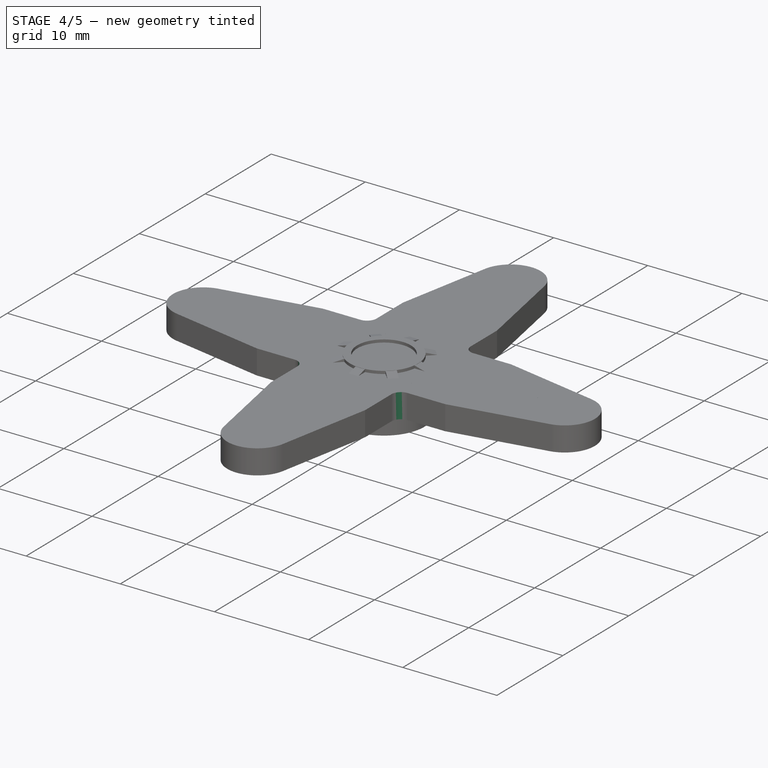
[diagram: stage 4 of 5 — iso view after this stage's code; geometry added in this stage tinted green]
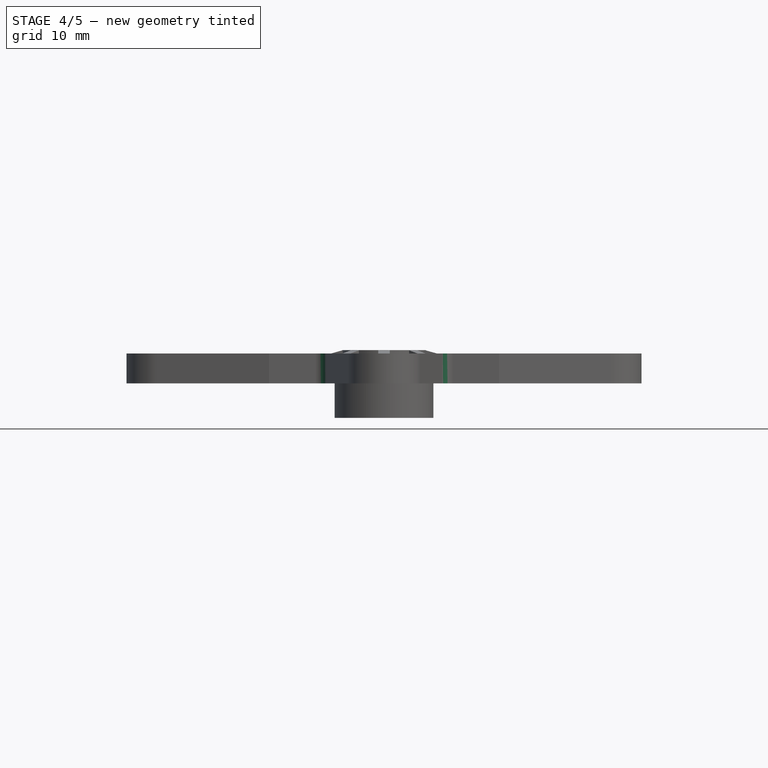
[diagram: stage 4 of 5 — front view after this stage's code; geometry added in this stage tinted green]
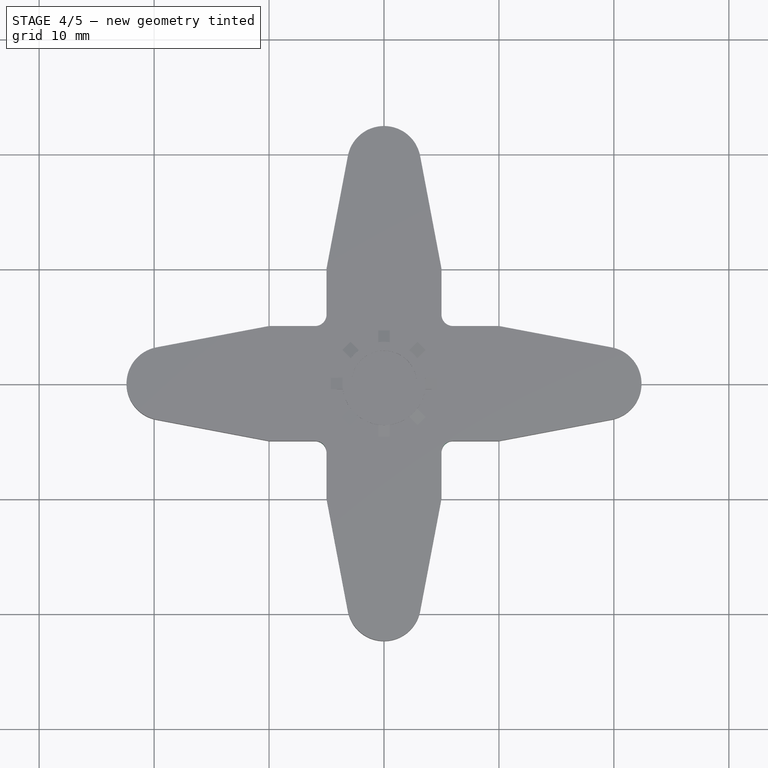
[diagram: stage 4 of 5 — top view after this stage's code; geometry added in this stage tinted green]
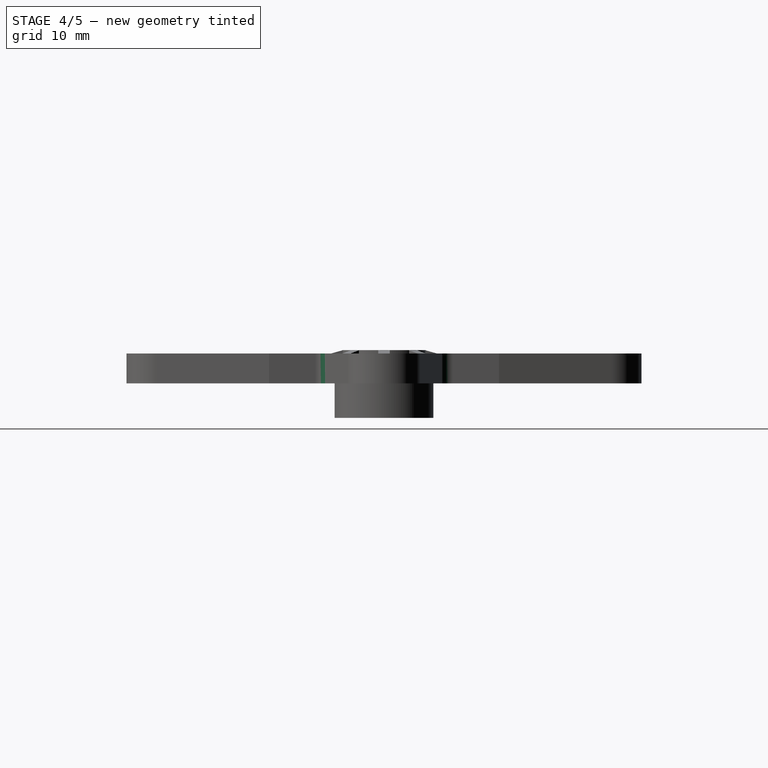
[diagram: stage 4 of 5 — right view after this stage's code; geometry added in this stage tinted green]
FEATURE [Image::ImagePlane] mg996r_arms
  Placement = pos=(-39,-16,0) rot=(0,0,1;0rad)
  XSize = 126.566
  YSize = 96.7134
FEATURE [Sketcher::SketchObject] Sketch
  FullyConstrained = true
  MapMode = 5
  Support = -> [XY_Plane]
  sketch-geometry (20):
    g0: ArcOfCircle CenterX=0 CenterY=19.2 CenterZ=0 NormalX=0 NormalY=0 NormalZ=1 AngleXU=0 Radius=3.2 StartAngle=0.187245 EndAngle=2.95435
    g1: LineSegment StartX=-3.14407 StartY=19.7957 StartZ=0 EndX=-5 EndY=10 EndZ=0
    g2: LineSegment StartX=-5 StartY=10 StartZ=0 EndX=-5 EndY=5 EndZ=0
    g3: LineSegment StartX=3.14407 StartY=19.7957 StartZ=0 EndX=5 EndY=10 EndZ=0
    g4: LineSegment StartX=5 StartY=10 StartZ=0 EndX=5 EndY=5 EndZ=0
    g5: ArcOfCircle CenterX=0 CenterY=-19.2 CenterZ=0 NormalX=0 NormalY=0 NormalZ=1 AngleXU=0 Radius=3.2 StartAngle=3.32884 EndAngle=6.09594
    g6: LineSegment StartX=-3.14407 StartY=-19.7957 StartZ=0 EndX=-5 EndY=-10 EndZ=0
    g7: LineSegment StartX=-5 StartY=-10 StartZ=0 EndX=-5 EndY=-5 EndZ=0
    g8: LineSegment StartX=3.14407 StartY=-19.7957 StartZ=0 EndX=5 EndY=-10 EndZ=0
    g9: LineSegment StartX=5 StartY=-10 StartZ=0 EndX=5 EndY=-5 EndZ=0
    g10: LineSegment StartX=5 StartY=5 StartZ=0 EndX=10 EndY=5 EndZ=0
    g11: LineSegment StartX=10 StartY=5 StartZ=0 EndX=19.7957 EndY=3.14407 EndZ=0
    g12: ArcOfCircle CenterX=19.2 CenterY=0 CenterZ=0 NormalX=0 NormalY=0 NormalZ=1 AngleXU=0 Radius=3.2 StartAngle=4.89963 EndAngle=7.66674
    g13: LineSegment StartX=5 StartY=-5 StartZ=0 EndX=10 EndY=-5 EndZ=0
    g14: LineSegment StartX=10 StartY=-5 StartZ=0 EndX=19.7957 EndY=-3.14407 EndZ=0
    g15: LineSegment StartX=-5 StartY=5 StartZ=0 EndX=-10 EndY=5 EndZ=0
    g16: LineSegment StartX=-10 StartY=5 StartZ=0 EndX=-19.7957 EndY=3.14407 EndZ=0
    g17: ArcOfCircle CenterX=-19.2 CenterY=0 CenterZ=0 NormalX=0 NormalY=0 NormalZ=1 AngleXU=0 Radius=3.2 StartAngle=1.75804 EndAngle=4.52514
    g18: LineSegment StartX=-10 StartY=-5 StartZ=0 EndX=-19.7957 EndY=-3.14407 EndZ=0
    g19: LineSegment StartX=-5 StartY=-5 StartZ=0 EndX=-10 EndY=-5 EndZ=0
  constraints (53):
    c: PointOnObject(g0,g-2)
    c: Coincident(g2,g1)
    c: Vertical(g2)
    c: Coincident(g4,g3)
    c: Vertical(g4)
    c: Coincident(g7,g6)
    c: Vertical(g7)
    c: Coincident(g9,g8)
    c: Vertical(g9)
    c: Coincident(g10,g4)
    c: Horizontal(g10)
    c: Coincident(g11,g10)
    c: Coincident(g12,g11)
    c: Horizontal(g13)
    c: Coincident(g14,g13)
    c: Horizontal(g15)
    c: Coincident(g16,g15)
    c: Horizontal(g19)
    c: Coincident(g18,g19)
    c: Equal(g0,g17)
    c: Equal(g17,g5)
    c: Equal(g5,g12)
    c: Radius(g17) = 3.2
    c: Tangent(g17,g18) = 1.5708
    c: Tangent(g16,g17) = -1.5708
    c: Symmetric(g16,g17,g-1)
    c: DistanceX(g2,g-1) = 5
    c: DistanceY(g-1,g2) = 5
    c: Coincident(g2,g15)
    c: Coincident(g7,g19)
    c: Coincident(g9,g13)
    c: Symmetric(g2,g9,g-1)
    c: Horizontal(g2,g4)
    c: Horizontal(g7,g9)
    c: DistanceX(g15,g15) = 5
    c: Equal(g15,g19)
    c: Equal(g19,g13)
    c: Equal(g13,g10)
    c: Equal(g10,g4)
    c: Equal(g4,g2)
    c: Equal(g2,g7)
    c: Equal(g7,g9)
    c: Vertical(g4,g9)
    c: Symmetric(g17,g12,g-1)
    c: Symmetric(g0,g5,g-1)
    c: DistanceX(g17,g-1) = 19.2
    c: DistanceY(g-1,g0) = 19.2
    c: Tangent(g0,g1) = -1.5708
    c: Tangent(g3,g0) = 1.5708
    c: Tangent(g5,g6) = 1.5708
    c: Tangent(g5,g8) = -1.5708
    c: Tangent(g12,g14) = -1.5708
    c: Tangent(g11,g12,g11) = 1.5708
FEATURE [PartDesign::Pad] Pad
  Direction = (0,0,1)
  Length = 2.6
  Length2 = 10
  Profile = -> Sketch
  ReferenceAxis = -> Sketch [N_Axis]
  Type = 0
FEATURE [Sketcher::SketchObject] Sketch001
  FullyConstrained = true
  MapMode = 5
  Support = -> [XY_Plane]
  sketch-geometry (2):
    g0: Circle CenterX=0 CenterY=0 CenterZ=0 NormalX=0 NormalY=0 NormalZ=1 AngleXU=0 Radius=3.625
    g1: Circle CenterX=0 CenterY=0 CenterZ=0 NormalX=0 NormalY=0 NormalZ=1 AngleXU=0 Radius=2.85
  constraints (4):
    c: Coincident(g0,g-1)
    c: Coincident(g1,g0)
    c: Diameter(g0) = 7.25
    c: Diameter(g1) = 5.7
FEATURE [PartDesign::Pad] Pad001
  BaseFeature = -> Pad
  Direction = (0,0,1)
  Length = 2.9
  Length2 = 10
  Profile = -> Sketch001
  ReferenceAxis = -> Sketch001 [N_Axis]
  Type = 0
FEATURE [PartDesign::PolarPattern] PolarPattern003
  Angle = 360
  Axis = -> Z_Axis001
  BaseFeature = -> Pad006
  Occurrences = 8
  Originals = -> [Pad006]
FEATURE [Sketcher::SketchObject] Sketch013
  ExternalGeometry = -> [PolarPattern003]
  FullyConstrained = true
  MapMode = 5
  Placement = pos=(0,0,2.9) rot=(0,0,1;0rad)
  Support = -> [PolarPattern003]
  sketch-geometry (1):
    g0: Circle CenterX=0 CenterY=0 CenterZ=0 NormalX=0 NormalY=0 NormalZ=1 AngleXU=0 Radius=2.85
  constraints (2):
    c: Coincident(g0,g-3)
    c: Tangent(g0,g-3)
FEATURE [PartDesign::Pocket] Pocket006
  BaseFeature = -> PolarPattern003
  Direction = (0,0,-1)
  Length = 1.3
  Length2 = 5
  Profile = -> Sketch013
  ReferenceAxis = -> Sketch013 [N_Axis]
  Refine = true
  Type = 0
FEATURE [Sketcher::SketchObject] Sketch014
  FullyConstrained = true
  MapMode = 5
  Placement = pos=(0,0,1.6) rot=(0,0,1;0rad)
  Support = -> [Pocket006]
  sketch-geometry (1):
    g0: Circle CenterX=0 CenterY=0 CenterZ=0 NormalX=0 NormalY=0 NormalZ=1 AngleXU=0 Radius=1.5
  constraints (2):
    c: Coincident(g0,g-1)
    c: Diameter(g0) = 3
FEATURE [PartDesign::Pocket] Pocket007
  BaseFeature = -> Pocket006
  Direction = (0,0,-1)
  Length = 5
  Length2 = 5
  Profile = -> Sketch014
  ReferenceAxis = -> Sketch014 [N_Axis]
  Type = 0
FEATURE [Sketcher::SketchObject] Sketch015
  FullyConstrained = true
  MapMode = 5
  Support = -> [XY_Plane001]
  sketch-geometry (7):
    g0: Circle CenterX=8.8 CenterY=0 CenterZ=0 NormalX=0 NormalY=0 NormalZ=1 AngleXU=0 Radius=0.75
    g1: Circle CenterX=12.1741 CenterY=0 CenterZ=0 NormalX=0 NormalY=0 NormalZ=1 AngleXU=0 Radius=0.75
    g2: LineSegment StartX=8.8 StartY=0 StartZ=0 EndX=12.1741 EndY=0 EndZ=0
    g3: Circle CenterX=15.5482 CenterY=0 CenterZ=0 NormalX=0 NormalY=0 NormalZ=1 AngleXU=0 Radius=0.75
    g4: LineSegment StartX=12.1741 StartY=0 StartZ=0 EndX=15.5482 EndY=0 EndZ=0
    g5: Circle CenterX=18.9223 CenterY=0 CenterZ=0 NormalX=0 NormalY=0 NormalZ=1 AngleXU=0 Radius=0.75
    g6: LineSegment StartX=15.5482 StartY=0 StartZ=0 EndX=18.9223 EndY=0 EndZ=0
  constraints (18):
    c: PointOnObject(g0,g-1)
    c: Coincident(g0,g2)
    c: Coincident(g1,g2)
    c: Distance(g2) = 3.37411
    c: Angle(g2) = 0
    c: Coincident(g1,g4)
    c: Coincident(g3,g4)
    c: Equal(g2,g4)
    c: Parallel(g4,g2)
    c: Coincident(g3,g6)
    c: Coincident(g5,g6)
    c: Equal(g2,g6)
    c: Parallel(g6,g2)
    c: DistanceX(g-1,g0) = 8.8
    c: Diameter(g0) = 1.5
    c: Equal(g0,g1)
    c: Equal(g1,g3)
    c: Equal(g3,g5)
FEATURE [PartDesign::Pocket] Pocket008
  BaseFeature = -> Pocket007
  Direction = (0,0,-1)
  Length = 5
  Length2 = 5
  Profile = -> Sketch015
  ReferenceAxis = -> Sketch015 [N_Axis]
  Reversed = true
  Type = 0
FEATURE [PartDesign::PolarPattern] PolarPattern004
  Angle = 360
  Axis = -> Z_Axis001
  BaseFeature = -> Pocket008
  Occurrences = 4
  Originals = -> [Pocket008]
FEATURE [Sketcher::SketchObject] Sketch016
  FullyConstrained = true
  MapMode = 5
  Support = -> [XY_Plane001]
  sketch-geometry (1):
    g0: Circle CenterX=0 CenterY=0 CenterZ=0 NormalX=0 NormalY=0 NormalZ=1 AngleXU=0 Radius=4.3
  constraints (2):
    c: Coincident(g0,g-1)
    c: Diameter(g0) = 8.6
FEATURE [PartDesign::Pad] Pad007
  BaseFeature = -> PolarPattern004
  Direction = (0,0,1)
  Length = 3
  Length2 = 10
  Profile = -> Sketch016
  ReferenceAxis = -> Sketch016 [N_Axis]
  Reversed = true
  Type = 0
FEATURE [Sketcher::SketchObject] Sketch017
  FullyConstrained = false
  MapMode = 5
  Support = -> [XY_Plane001]
  sketch-geometry (9):
    g0: Circle CenterX=0 CenterY=0 CenterZ=0 NormalX=0 NormalY=0 NormalZ=1 AngleXU=0 Radius=3
    g1: LineSegment StartX=0 StartY=0 StartZ=0 EndX=2.97634 EndY=0.376 EndZ=0
    g2: LineSegment StartX=0 StartY=0 StartZ=0 EndX=2.97634 EndY=-0.376 EndZ=0
    g3: ArcOfCircle CenterX=0 CenterY=0 CenterZ=0 NormalX=0 NormalY=0 NormalZ=1 AngleXU=0 Radius=3 StartAngle=0.0573375 EndAngle=0.125664
    g4: ArcOfCircle CenterX=0 CenterY=0 CenterZ=0 NormalX=0 NormalY=0 NormalZ=1 AngleXU=0 Radius=3 StartAngle=6.15752 EndAngle=6.22585
    g5: LineSegment StartX=2.99507 StartY=0.171918 StartZ=0 EndX=2.70396 EndY=0 EndZ=0
    g6: LineSegment StartX=2.70396 StartY=0 StartZ=0 EndX=2.99507 EndY=-0.171918 EndZ=0
    g7: LineSegment StartX=0 StartY=0 StartZ=0 EndX=2.97634 EndY=0.376 EndZ=0
    g8: LineSegment StartX=0 StartY=0 StartZ=0 EndX=2.97634 EndY=-0.376 EndZ=0
  constraints (20):
    c: Coincident(g0,g-1)
    c: Diameter(g0) = 6
    c: Coincident(g1,g0)
    c: PointOnObject(g1,g0)
    c: Coincident(g2,g0)
    c: Angle(g-1,g1) = 0.125664
    c: Angle(g2,g-1) = 0.125664
    c: Coincident(g3,g0)
    c: Coincident(g3,g1)
    c: Coincident(g4,g3)
    c: Coincident(g4,g2)
    c: Symmetric(g3,g4,g-1)
    c: Coincident(g5,g3)
    c: PointOnObject(g5,g-1)
    c: Coincident(g6,g5)
    c: Coincident(g6,g4)
    c: Coincident(g7,g3)
    c: Coincident(g7,g3)
    c: Coincident(g8,g3)
    c: Coincident(g8,g4)
FEATURE [PartDesign::Pocket] Pocket009
  BaseFeature = -> Pad007
  Direction = (0,0,-1)
  Length = 5
  Length2 = 0.5
  Profile = -> Sketch017
  ReferenceAxis = -> Sketch017 [N_Axis]
  Type = 4
FEATURE [PartDesign::PolarPattern] PolarPattern005
  Angle = 360
  Axis = -> Sketch017 [N_Axis]
  BaseFeature = -> Pocket009
  Occurrences = 25
  Originals = -> [Pocket009]
  Refine = true
FEATURE [PartDesign::Body] Body  label="Corps"
  Group = -> [Sketch,Pad,Sketch001,Pad001,Sketch002,Pocket,Sketch003,Pad002,PolarPattern,Sketch004,Pocket001,Sketch005,Pocket002,Sketch006,Pocket003,PolarPattern001,Sketch007,Pad003,Sketch008,Pocket004,PolarPattern002,Sketch018,Pocket010]
  Origin = -> Origin
  Placement = pos=(0,50,0) rot=(0,0,1;0rad)
  Tip = -> Pocket010
FEATURE [PartDesign::Fillet] Fillet
  Base = -> PolarPattern005 [Edge125,Edge115,Edge1,Edge116]
  BaseFeature = -> PolarPattern005
  Radius = 1
  SupportTransform = false
  UseAllEdges = false
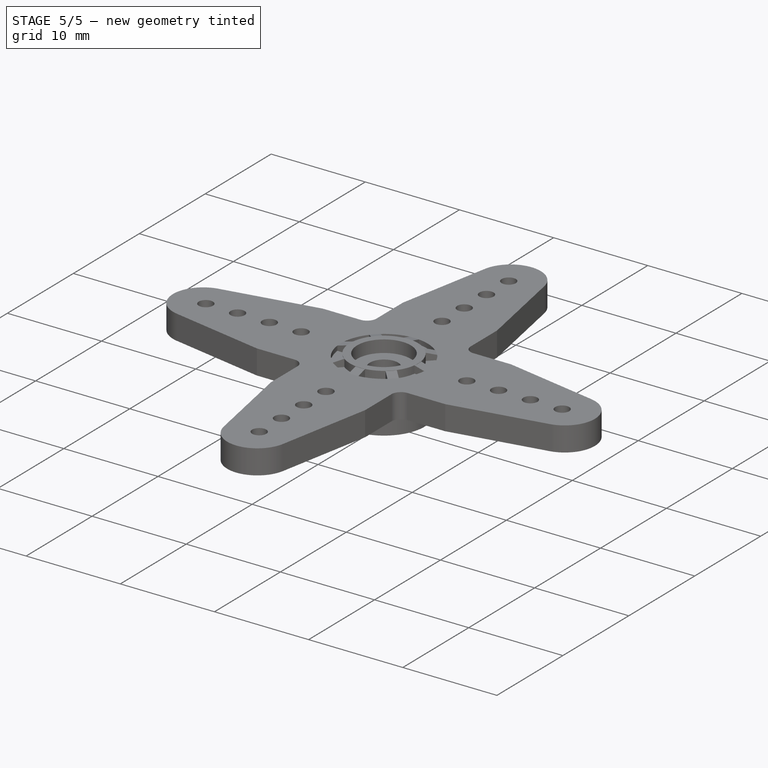
[diagram: stage 5 of 5 — iso view after this stage's code; geometry added in this stage tinted green]
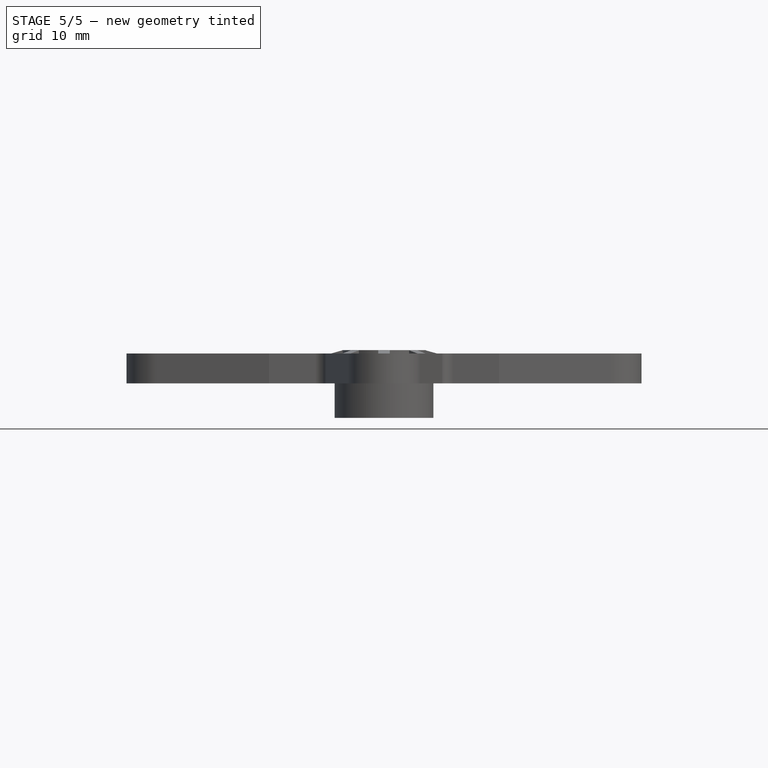
[diagram: stage 5 of 5 — front view after this stage's code; geometry added in this stage tinted green]
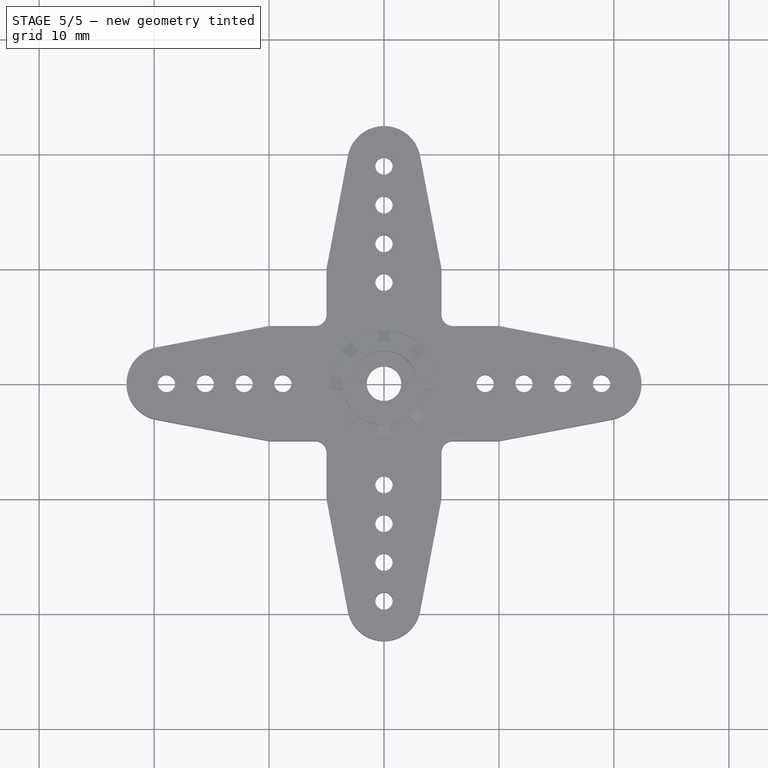
[diagram: stage 5 of 5 — top view after this stage's code; geometry added in this stage tinted green]
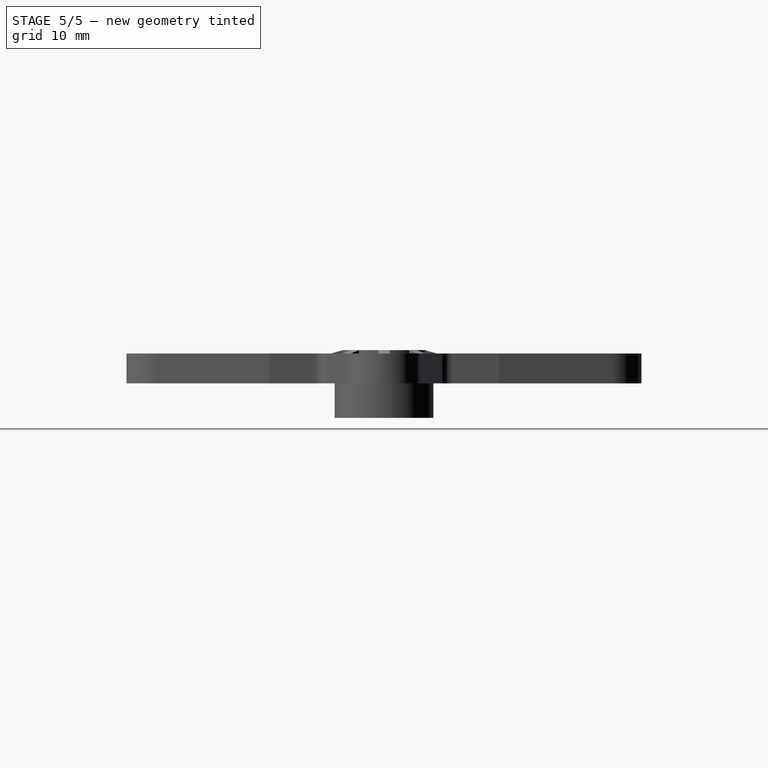
[diagram: stage 5 of 5 — right view after this stage's code; geometry added in this stage tinted green]
FEATURE [Sketcher::SketchObject] Sketch002
  ExternalGeometry = -> [Pad001]
  FullyConstrained = false
  MapMode = 5
  Placement = pos=(0,0,2.6) rot=(0,0,1;0rad)
  Support = -> [Pad001]
  sketch-geometry (2):
    g0: Circle CenterX=0 CenterY=0 CenterZ=0 NormalX=0 NormalY=0 NormalZ=1 AngleXU=0 Radius=3.625
    g1: Circle CenterX=0 CenterY=0 CenterZ=0 NormalX=0 NormalY=0 NormalZ=1 AngleXU=0 Radius=4.625
  constraints (3):
    c: Coincident(g0,g-3)
    c: Coincident(g1,g0)
    c: Diameter(g1) = 9.25
FEATURE [PartDesign::Pocket] Pocket
  BaseFeature = -> Pad001
  Direction = (0,0,-1)
  Length = 0.5
  Length2 = 5
  Profile = -> Sketch002
  ReferenceAxis = -> Sketch002 [N_Axis]
  Type = 0
FEATURE [Sketcher::SketchObject] Sketch003
  ExternalGeometry = -> [Pocket]
  FullyConstrained = false
  MapMode = 5
  Placement = pos=(0,0,0) rot=(1,0,0;1.5708rad)
  Support = -> [XZ_Plane]
  sketch-geometry (4):
    g0: LineSegment StartX=3.53766 StartY=2.9 StartZ=0 EndX=4.625 EndY=2.6 EndZ=0
    g1: LineSegment StartX=4.625 StartY=2.6 StartZ=0 EndX=4.625 EndY=2.1 EndZ=0
    g2: LineSegment StartX=4.625 StartY=2.1 StartZ=0 EndX=3.53766 EndY=2.1 EndZ=0
    g3: LineSegment StartX=3.53766 StartY=2.1 StartZ=0 EndX=3.53766 EndY=2.9 EndZ=0
  constraints (9):
    c: PointOnObject(g0,g-3)
    c: Coincident(g0,g-5)
    c: Coincident(g0,g1)
    c: Coincident(g1,g-5)
    c: Coincident(g1,g2)
    c: PointOnObject(g2,g-4)
    c: Coincident(g2,g3)
    c: Coincident(g3,g0)
    c: Vertical(g3)
FEATURE [PartDesign::Pad] Pad002
  BaseFeature = -> Pocket
  Direction = (0,-1,2e-16)
  Length = 1
  Length2 = 10
  Midplane = true
  Profile = -> Sketch003
  ReferenceAxis = -> Sketch003 [N_Axis]
  Type = 0
FEATURE [PartDesign::PolarPattern] PolarPattern
  Angle = 360
  Axis = -> Z_Axis
  BaseFeature = -> Pad002
  Occurrences = 8
  Originals = -> [Pad002]
FEATURE [Sketcher::SketchObject] Sketch004
  ExternalGeometry = -> [PolarPattern]
  FullyConstrained = true
  MapMode = 5
  Placement = pos=(0,0,2.9) rot=(0,0,1;0rad)
  Support = -> [PolarPattern]
  sketch-geometry (1):
    g0: Circle CenterX=0 CenterY=0 CenterZ=0 NormalX=0 NormalY=0 NormalZ=1 AngleXU=0 Radius=2.85
  constraints (2):
    c: Coincident(g0,g-3)
    c: Tangent(g0,g-3)
FEATURE [PartDesign::Pocket] Pocket001
  BaseFeature = -> PolarPattern
  Direction = (0,0,-1)
  Length = 1.3
  Length2 = 5
  Profile = -> Sketch004
  ReferenceAxis = -> Sketch004 [N_Axis]
  Refine = true
  Type = 0
FEATURE [Sketcher::SketchObject] Sketch005
  FullyConstrained = true
  MapMode = 5
  Placement = pos=(0,0,1.6) rot=(0,0,1;0rad)
  Support = -> [Pocket001]
  sketch-geometry (1):
    g0: Circle CenterX=0 CenterY=0 CenterZ=0 NormalX=0 NormalY=0 NormalZ=1 AngleXU=0 Radius=1.5
  constraints (2):
    c: Coincident(g0,g-1)
    c: Diameter(g0) = 3
FEATURE [PartDesign::Pocket] Pocket002
  BaseFeature = -> Pocket001
  Direction = (0,0,-1)
  Length = 5
  Length2 = 5
  Profile = -> Sketch005
  ReferenceAxis = -> Sketch005 [N_Axis]
  Type = 0
FEATURE [Sketcher::SketchObject] Sketch006
  FullyConstrained = true
  MapMode = 5
  Support = -> [XY_Plane]
  sketch-geometry (7):
    g0: Circle CenterX=8.8 CenterY=0 CenterZ=0 NormalX=0 NormalY=0 NormalZ=1 AngleXU=0 Radius=0.75
    g1: Circle CenterX=12.1741 CenterY=0 CenterZ=0 NormalX=0 NormalY=0 NormalZ=1 AngleXU=0 Radius=0.75
    g2: LineSegment StartX=8.8 StartY=0 StartZ=0 EndX=12.1741 EndY=0 EndZ=0
    g3: Circle CenterX=15.5482 CenterY=0 CenterZ=0 NormalX=0 NormalY=0 NormalZ=1 AngleXU=0 Radius=0.75
    g4: LineSegment StartX=12.1741 StartY=0 StartZ=0 EndX=15.5482 EndY=0 EndZ=0
    g5: Circle CenterX=18.9223 CenterY=0 CenterZ=0 NormalX=0 NormalY=0 NormalZ=1 AngleXU=0 Radius=0.75
    g6: LineSegment StartX=15.5482 StartY=0 StartZ=0 EndX=18.9223 EndY=0 EndZ=0
  constraints (18):
    c: PointOnObject(g0,g-1)
    c: Coincident(g0,g2)
    c: Coincident(g1,g2)
    c: Distance(g2) = 3.37411
    c: Angle(g2) = 0
    c: Coincident(g1,g4)
    c: Coincident(g3,g4)
    c: Equal(g2,g4)
    c: Parallel(g4,g2)
    c: Coincident(g3,g6)
    c: Coincident(g5,g6)
    c: Equal(g2,g6)
    c: Parallel(g6,g2)
    c: DistanceX(g-1,g0) = 8.8
    c: Diameter(g0) = 1.5
    c: Equal(g0,g1)
    c: Equal(g1,g3)
    c: Equal(g3,g5)
FEATURE [PartDesign::Pocket] Pocket003
  BaseFeature = -> Pocket002
  Direction = (0,0,-1)
  Length = 5
  Length2 = 5
  Profile = -> Sketch006
  ReferenceAxis = -> Sketch006 [N_Axis]
  Reversed = true
  Type = 0
FEATURE [PartDesign::PolarPattern] PolarPattern001
  Angle = 360
  Axis = -> Z_Axis
  BaseFeature = -> Pocket003
  Occurrences = 4
  Originals = -> [Pocket003]
FEATURE [Sketcher::SketchObject] Sketch007
  FullyConstrained = true
  MapMode = 5
  Support = -> [XY_Plane]
  sketch-geometry (1):
    g0: Circle CenterX=0 CenterY=0 CenterZ=0 NormalX=0 NormalY=0 NormalZ=1 AngleXU=0 Radius=4.3
  constraints (2):
    c: Coincident(g0,g-1)
    c: Diameter(g0) = 8.6
FEATURE [PartDesign::Pad] Pad003
  BaseFeature = -> PolarPattern001
  Direction = (0,0,1)
  Length = 3
  Length2 = 10
  Profile = -> Sketch007
  ReferenceAxis = -> Sketch007 [N_Axis]
  Reversed = true
  Type = 0
FEATURE [Sketcher::SketchObject] Sketch008
  FullyConstrained = false
  MapMode = 5
  Support = -> [XY_Plane]
  sketch-geometry (9):
    g0: Circle CenterX=0 CenterY=0 CenterZ=0 NormalX=0 NormalY=0 NormalZ=1 AngleXU=0 Radius=3
    g1: LineSegment StartX=0 StartY=0 StartZ=0 EndX=2.97634 EndY=0.376 EndZ=0
    g2: LineSegment StartX=0 StartY=0 StartZ=0 EndX=2.97634 EndY=-0.376 EndZ=0
    g3: ArcOfCircle CenterX=0 CenterY=0 CenterZ=0 NormalX=0 NormalY=0 NormalZ=1 AngleXU=0 Radius=3 StartAngle=0.0573375 EndAngle=0.125664
    g4: ArcOfCircle CenterX=0 CenterY=0 CenterZ=0 NormalX=0 NormalY=0 NormalZ=1 AngleXU=0 Radius=3 StartAngle=6.15752 EndAngle=6.22585
    g5: LineSegment StartX=2.99507 StartY=0.171918 StartZ=0 EndX=2.70396 EndY=0 EndZ=0
    g6: LineSegment StartX=2.70396 StartY=0 StartZ=0 EndX=2.99507 EndY=-0.171918 EndZ=0
    g7: LineSegment StartX=0 StartY=0 StartZ=0 EndX=2.97634 EndY=0.376 EndZ=0
    g8: LineSegment StartX=0 StartY=0 StartZ=0 EndX=2.97634 EndY=-0.376 EndZ=0
  constraints (20):
    c: Coincident(g0,g-1)
    c: Diameter(g0) = 6
    c: Coincident(g1,g0)
    c: PointOnObject(g1,g0)
    c: Coincident(g2,g0)
    c: Angle(g-1,g1) = 0.125664
    c: Angle(g2,g-1) = 0.125664
    c: Coincident(g3,g0)
    c: Coincident(g3,g1)
    c: Coincident(g4,g3)
    c: Coincident(g4,g2)
    c: Symmetric(g3,g4,g-1)
    c: Coincident(g5,g3)
    c: PointOnObject(g5,g-1)
    c: Coincident(g6,g5)
    c: Coincident(g6,g4)
    c: Coincident(g7,g3)
    c: Coincident(g7,g3)
    c: Coincident(g8,g3)
    c: Coincident(g8,g4)
FEATURE [PartDesign::Pocket] Pocket004
  BaseFeature = -> Pad003
  Direction = (0,0,-1)
  Length = 5
  Length2 = 0.5
  Profile = -> Sketch008
  ReferenceAxis = -> Sketch008 [N_Axis]
  Type = 4
FEATURE [PartDesign::PolarPattern] PolarPattern002
  Angle = 360
  Axis = -> Sketch008 [N_Axis]
  BaseFeature = -> Pocket004
  Occurrences = 25
  Originals = -> [Pocket004]
  Refine = true
FEATURE [Sketcher::SketchObject] Sketch018
  FullyConstrained = false
  MapMode = 5
  Support = -> [XY_Plane]
  sketch-geometry (18):
    g0: Circle CenterX=0 CenterY=0 CenterZ=0 NormalX=0 NormalY=0 NormalZ=1 AngleXU=0 Radius=5.65
    g1: LineSegment StartX=-5.82071 StartY=5.82071 StartZ=0 EndX=6.33496 EndY=-6.33496 EndZ=0
    g2: LineSegment StartX=3.99515 StartY=-3.99515 StartZ=0 EndX=10.4736 EndY=-3.99515 EndZ=0
    g3: LineSegment StartX=10.4736 StartY=-3.99515 StartZ=0 EndX=19.7826 EndY=-3.11329 EndZ=0
    g4: LineSegment StartX=19.7826 StartY=-3.11329 StartZ=0 EndX=19.7826 EndY=-24.3946 EndZ=0
    g5: LineSegment StartX=19.7826 StartY=-24.3946 StartZ=0 EndX=-17.2654 EndY=-24.3946 EndZ=0
    g6: LineSegment StartX=-3.99515 StartY=-3.99516 StartZ=0 EndX=-10.4736 EndY=-3.99516 EndZ=0
    g7: LineSegment StartX=-10.4736 StartY=-3.99516 StartZ=0 EndX=-19.7826 EndY=-3.11329 EndZ=0
    g8: LineSegment StartX=-19.7826 StartY=-3.11329 StartZ=0 EndX=-17.2654 EndY=-24.3946 EndZ=0
    g9: ArcOfCircle CenterX=0 CenterY=0 CenterZ=0 NormalX=0 NormalY=0 NormalZ=1 AngleXU=0 Radius=5.65 StartAngle=3.92699 EndAngle=5.49779
    g10: LineSegment StartX=3.99515 StartY=3.99515 StartZ=0 EndX=10.4736 EndY=3.99515 EndZ=0
    g11: LineSegment StartX=10.4736 StartY=3.99515 StartZ=0 EndX=19.7826 EndY=3.11329 EndZ=0
    g12: LineSegment StartX=19.7826 StartY=3.11329 StartZ=0 EndX=19.7826 EndY=24.3946 EndZ=0
    g13: LineSegment StartX=19.7826 StartY=24.3946 StartZ=0 EndX=-17.2654 EndY=24.3946 EndZ=0
    g14: LineSegment StartX=-3.99515 StartY=3.99516 StartZ=0 EndX=-10.4736 EndY=3.99516 EndZ=0
    g15: LineSegment StartX=-10.4736 StartY=3.99516 StartZ=0 EndX=-19.7826 EndY=3.11329 EndZ=0
    g16: LineSegment StartX=-19.7826 StartY=3.11329 StartZ=0 EndX=-17.2654 EndY=24.3946 EndZ=0
    g17: ArcOfCircle CenterX=0 CenterY=0 CenterZ=0 NormalX=0 NormalY=0 NormalZ=1 AngleXU=0 Radius=5.65 StartAngle=0.785398 EndAngle=2.35619
  constraints (31):
    c: Coincident(g0,g-1)
    c: Diameter(g0) = 11.3
    c: PointOnObject(g0,g1)
    c: Angle(g1,g-1) = 0.785398
    c: PointOnObject(g2,g1)
    c: Horizontal(g2)
    c: PointOnObject(g2,g0)
    c: Coincident(g2,g3)
    c: Coincident(g3,g4)
    c: Vertical(g4)
    c: Coincident(g4,g5)
    c: Horizontal(g5)
    c: Horizontal(g6)
    c: Coincident(g6,g7)
    c: Coincident(g8,g7)
    c: Coincident(g8,g5)
    c: Coincident(g9,g0)
    c: Coincident(g9,g6)
    c: Coincident(g9,g2)
    c: Horizontal(g10)
    c: Coincident(g10,g11)
    c: Coincident(g11,g12)
    c: Vertical(g12)
    c: Coincident(g12,g13)
    c: Horizontal(g13)
    c: Horizontal(g14)
    c: Coincident(g14,g15)
    c: Coincident(g16,g15)
    c: Coincident(g16,g13)
    c: Coincident(g17,g14)
    c: Coincident(g17,g10)
FEATURE [PartDesign::Pocket] Pocket010
  BaseFeature = -> PolarPattern002
  Direction = (0,0,-1)
  Length = 5
  Length2 = 5
  Profile = -> Sketch018
  ReferenceAxis = -> Sketch018 [N_Axis]
  Reversed = true
  Type = 0
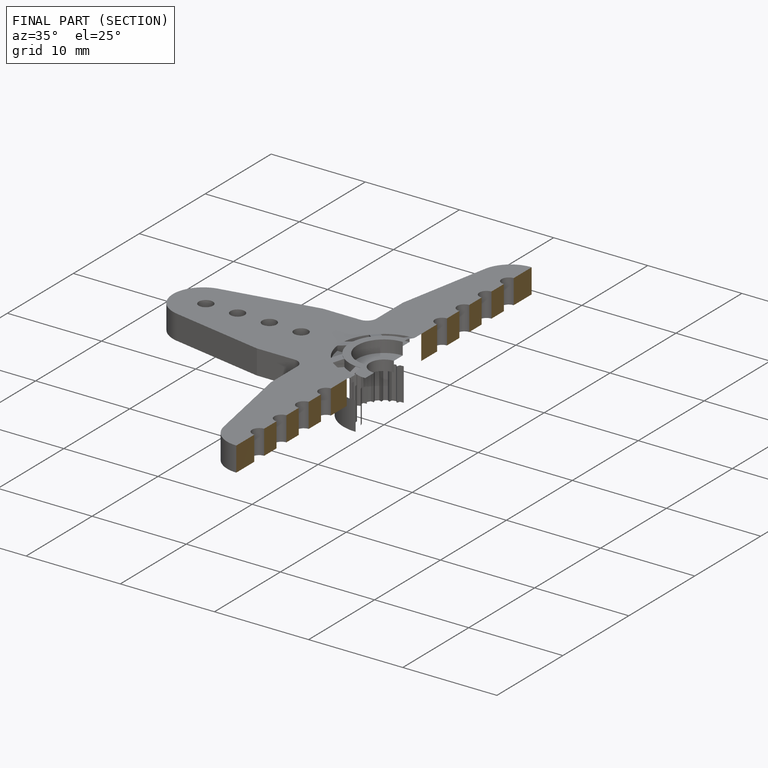
[diagram: finished part — half-section view (interior)]
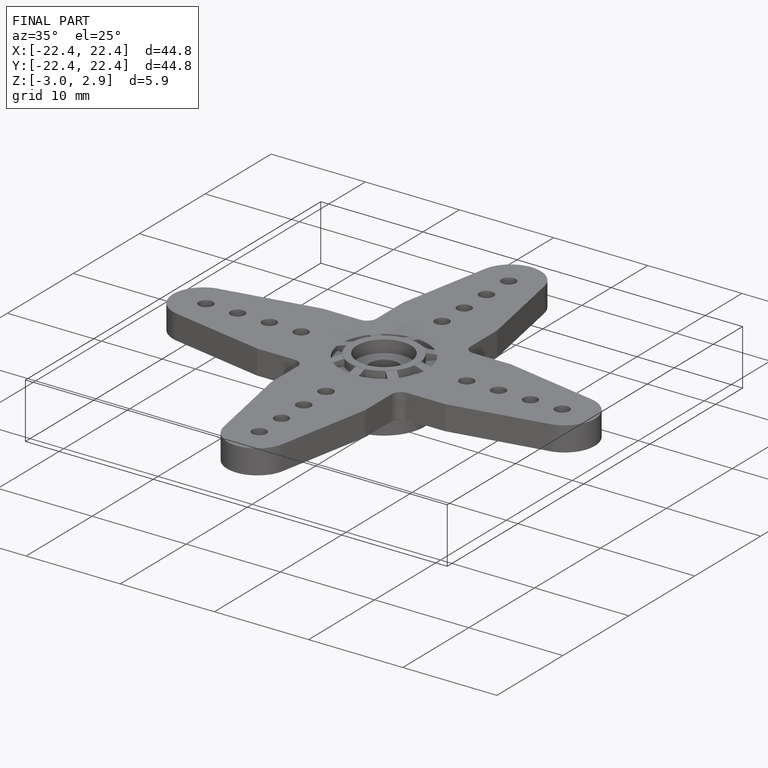
[diagram: finished part — iso view with bounding-box wireframe]
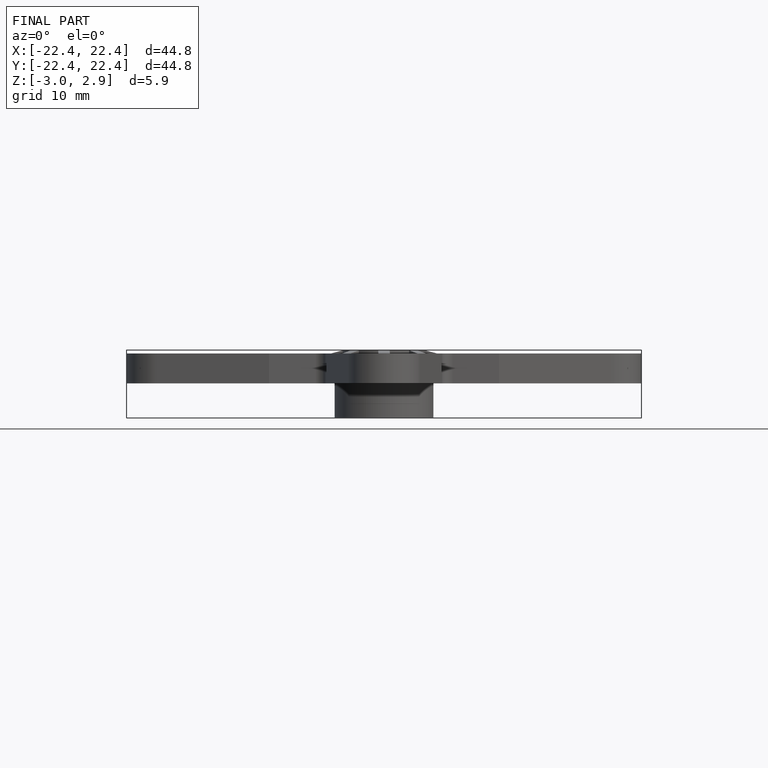
[diagram: finished part — front view with bounding-box wireframe]
